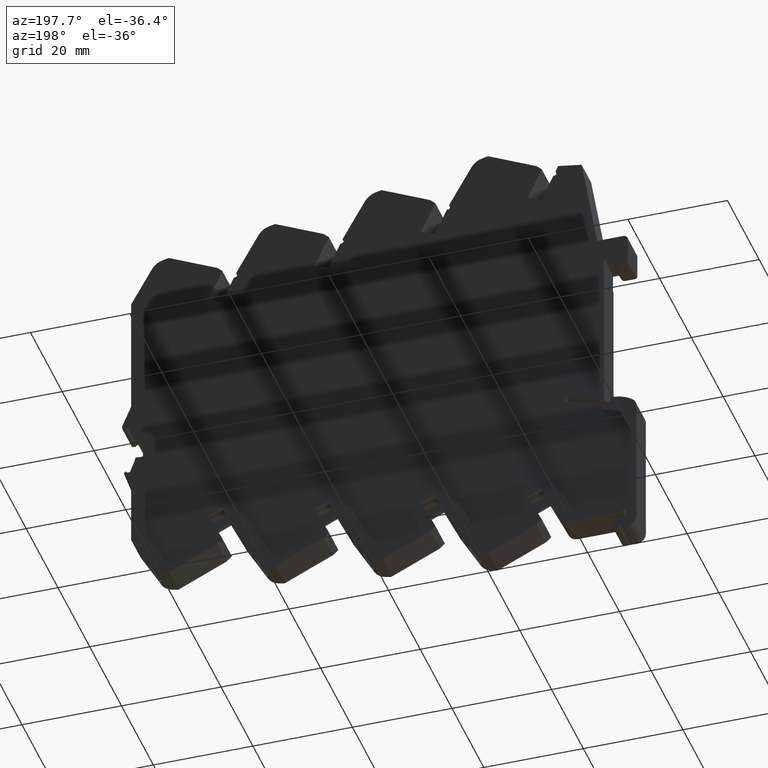
[diagram: clean part render]
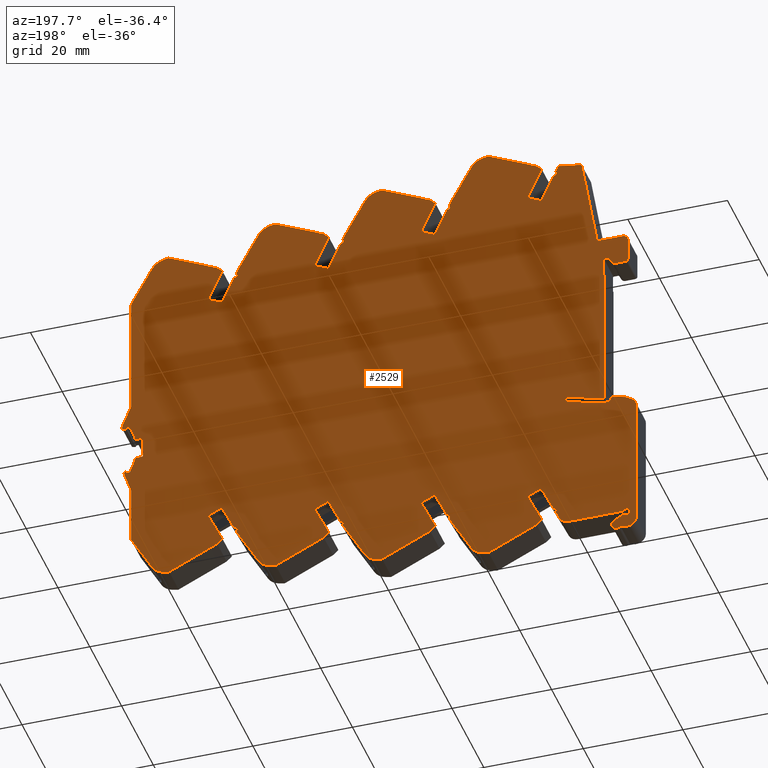
[diagram: same view with one face highlighted and labeled with its STEP entity id]
A machine part, auxiliary view. The second image highlights one B-rep face of the part: STEP entity #2529.
In plain terms, the highlighted planar face has unit normal (0, 1, 0).
Its self-contained STEP definition (entity closure, byte-faithful):
#23 = DIRECTION ( 'NONE',  ( 1.000000000000000000, 0.000000000000000000, 0.000000000000000000 ) ) ;
#24 = DIRECTION ( 'NONE',  ( 0.000000000000000000, 1.000000000000000000, 0.000000000000000000 ) ) ;
#30 = EDGE_CURVE ( 'NONE', #4700, #5762, #3654, .T. ) ;
#33 = CARTESIAN_POINT ( 'NONE',  ( 3.000000000000000000, 46.24974242191490248, -17.63143367426578934 ) ) ;
#41 = VERTEX_POINT ( 'NONE', #3744 ) ;
#49 = CARTESIAN_POINT ( 'NONE',  ( 3.000000000000000000, -0.08541600000000219850, 52.55000000000000426 ) ) ;
#53 = DIRECTION ( 'NONE',  ( 0.000000000000000000, 0.4226182389767550451, 0.9063077976516512591 ) ) ;
#63 = LINE ( 'NONE', #5994, #4267 ) ;
#66 = AXIS2_PLACEMENT_3D ( 'NONE', #6480, #5822, #1073 ) ;
#74 = LINE ( 'NONE', #7367, #4528 ) ;
#83 = DIRECTION ( 'NONE',  ( 0.000000000000000000, 1.000000000000000000, 0.000000000000000000 ) ) ;
#92 = DIRECTION ( 'NONE',  ( 0.000000000000000000, -1.000000000000000000, 0.000000000000000000 ) ) ;
#94 = LINE ( 'NONE', #2205, #5680 ) ;
#98 = EDGE_CURVE ( 'NONE', #8410, #3798, #6416, .T. ) ;
#110 = CARTESIAN_POINT ( 'NONE',  ( 3.000000000000000000, 18.47499999999999787, -45.22258599999998552 ) ) ;
#120 = ORIENTED_EDGE ( 'NONE', *, *, #1795, .T. ) ;
#134 = DIRECTION ( 'NONE',  ( 0.000000000000000000, 1.000000000000000000, 0.000000000000000000 ) ) ;
#142 = CARTESIAN_POINT ( 'NONE',  ( 3.000000000000000000, -36.30747228031760443, 43.07241960114301804 ) ) ;
#151 = EDGE_CURVE ( 'NONE', #6503, #3981, #2947, .T. ) ;
#194 = CARTESIAN_POINT ( 'NONE',  ( 3.000000000000000000, -40.32500000000000284, -37.11722635186902153 ) ) ;
#195 = CARTESIAN_POINT ( 'NONE',  ( 3.000000000000000000, -44.29974242191489964, -17.63143367426578934 ) ) ;
#199 = VECTOR ( 'NONE', #53, 1000.000000000000227 ) ;
#216 = ORIENTED_EDGE ( 'NONE', *, *, #924, .T. ) ;
#220 = DIRECTION ( 'NONE',  ( 0.000000000000000000, 1.000000000000000000, 0.000000000000000000 ) ) ;
#227 = EDGE_CURVE ( 'NONE', #4911, #3389, #5880, .T. ) ;
#272 = EDGE_CURVE ( 'NONE', #6134, #1087, #4157, .T. ) ;
#280 = DIRECTION ( 'NONE',  ( 0.000000000000000000, 1.000000000000000000, 0.000000000000000000 ) ) ;
#285 = LINE ( 'NONE', #2229, #1004 ) ;
#295 = ORIENTED_EDGE ( 'NONE', *, *, #2162, .T. ) ;
#303 = EDGE_CURVE ( 'NONE', #3518, #7428, #4051, .T. ) ;
#306 = AXIS2_PLACEMENT_3D ( 'NONE', #2846, #2892, #8156 ) ;
#307 = VECTOR ( 'NONE', #7462, 1000.000000000000000 ) ;
#319 = ORIENTED_EDGE ( 'NONE', *, *, #7263, .T. ) ;
#335 = DIRECTION ( 'NONE',  ( 0.000000000000000000, 1.000000000000000000, 0.000000000000000000 ) ) ;
#341 = VECTOR ( 'NONE', #2929, 1000.000000000000114 ) ;
#350 = ORIENTED_EDGE ( 'NONE', *, *, #4163, .T. ) ;
#355 = EDGE_CURVE ( 'NONE', #8613, #2638, #8164, .T. ) ;
#362 = ORIENTED_EDGE ( 'NONE', *, *, #5107, .T. ) ;
#365 = LINE ( 'NONE', #3540, #3821 ) ;
#375 = ORIENTED_EDGE ( 'NONE', *, *, #3512, .T. ) ;
#378 = AXIS2_PLACEMENT_3D ( 'NONE', #2512, #5805, #3659 ) ;
#379 = CARTESIAN_POINT ( 'NONE',  ( 3.000000000000000000, 4.574627000000000443, 50.75000000000000711 ) ) ;
#383 = CARTESIAN_POINT ( 'NONE',  ( 3.000000000000000000, -14.92500000000000071, -45.84999999999998721 ) ) ;
#395 = ORIENTED_EDGE ( 'NONE', *, *, #3591, .T. ) ;
#397 = LINE ( 'NONE', #4456, #4181 ) ;
#400 = CARTESIAN_POINT ( 'NONE',  ( 3.000000000000000000, -43.18036732630590535, -48.24594927549720325 ) ) ;
#416 = LINE ( 'NONE', #4473, #8168 ) ;
#420 = CARTESIAN_POINT ( 'NONE',  ( 3.000000000000000000, 33.99153209865420422, 8.672509953996806686 ) ) ;
#422 = AXIS2_PLACEMENT_3D ( 'NONE', #4691, #640, #6573 ) ;
#426 = CARTESIAN_POINT ( 'NONE',  ( 3.000000000000000000, 17.50238246662039998, -45.80353878241179899 ) ) ;
#429 = CARTESIAN_POINT ( 'NONE',  ( 3.000000000000000000, 41.55567196690120113, 21.94211615099361268 ) ) ;
#438 = ORIENTED_EDGE ( 'NONE', *, *, #4827, .T. ) ;
#439 = CARTESIAN_POINT ( 'NONE',  ( 3.000000000000000000, -35.09255900000000139, 12.06949300000000669 ) ) ;
#444 = VECTOR ( 'NONE', #5278, 1000.000000000000000 ) ;
#453 = LINE ( 'NONE', #3846, #5280 ) ;
#459 = CARTESIAN_POINT ( 'NONE',  ( 3.000000000000000000, -31.82255900000000182, 33.45449300000000648 ) ) ;
#465 = LINE ( 'NONE', #5912, #7094 ) ;
#467 = CARTESIAN_POINT ( 'NONE',  ( 3.000000000000000000, -32.84521471387499503, 43.60500013366809924 ) ) ;
#473 = CARTESIAN_POINT ( 'NONE',  ( 3.000000000000000000, 28.95057999999999865, 50.74349200000001048 ) ) ;
#485 = CARTESIAN_POINT ( 'NONE',  ( 3.000000000000000000, 0.4716932824673149560, 52.50952687886500314 ) ) ;
#489 = VERTEX_POINT ( 'NONE', #1666 ) ;
#501 = VERTEX_POINT ( 'NONE', #4217 ) ;
#502 = ORIENTED_EDGE ( 'NONE', *, *, #1977, .T. ) ;
#512 = CIRCLE ( 'NONE', #2344, 0.2000000000000000111 ) ;
#530 = CARTESIAN_POINT ( 'NONE',  ( 3.000000000000000000, 0.2746270000000000100, 52.55000000000000426 ) ) ;
#538 = LINE ( 'NONE', #3224, #6545 ) ;
#566 = CARTESIAN_POINT ( 'NONE',  ( 3.000000000000000000, 14.72499999999999964, -44.14999999999998437 ) ) ;
#580 = CARTESIAN_POINT ( 'NONE',  ( 3.000000000000000000, -45.92751672738229729, -19.83268575635068842 ) ) ;
#587 = VERTEX_POINT ( 'NONE', #1921 ) ;
#589 = CARTESIAN_POINT ( 'NONE',  ( 3.000000000000000000, 37.04256000000000171, 12.06949300000000669 ) ) ;
#593 = CIRCLE ( 'NONE', #5226, 0.1999999999999987899 ) ;
#596 = DIRECTION ( 'NONE',  ( 0.000000000000000000, 1.000000000000000000, 0.000000000000000000 ) ) ;
#597 = VERTEX_POINT ( 'NONE', #2451 ) ;
#601 = EDGE_CURVE ( 'NONE', #3070, #1785, #7232, .T. ) ;
#604 = CARTESIAN_POINT ( 'NONE',  ( 3.000000000000000000, 18.27500000000089742, -45.22258660470469493 ) ) ;
#613 = LINE ( 'NONE', #4010, #5826 ) ;
#615 = AXIS2_PLACEMENT_3D ( 'NONE', #467, #7810, #596 ) ;
#623 = EDGE_CURVE ( 'NONE', #7217, #5981, #465, .T. ) ;
#636 = CARTESIAN_POINT ( 'NONE',  ( 3.000000000000000000, -37.37593000000000387, -10.36499999999999311 ) ) ;
#640 = DIRECTION ( 'NONE',  ( 1.000000000000000000, 0.000000000000000000, 0.000000000000000000 ) ) ;
#642 = DIRECTION ( 'NONE',  ( 1.000000000000000000, 0.000000000000000000, 0.000000000000000000 ) ) ;
#656 = VERTEX_POINT ( 'NONE', #1254 ) ;
#663 = AXIS2_PLACEMENT_3D ( 'NONE', #194, #6218, #2883 ) ;
#665 = VERTEX_POINT ( 'NONE', #7368 ) ;
#704 = FACE_OUTER_BOUND ( 'NONE', #1926, .T. ) ;
#706 = DIRECTION ( 'NONE',  ( 0.000000000000000000, 1.000000000000000000, 0.000000000000000000 ) ) ;
#708 = EDGE_CURVE ( 'NONE', #7972, #501, #7386, .T. ) ;
#712 = CARTESIAN_POINT ( 'NONE',  ( 3.000000000000000000, 37.04256000000000171, 12.06949300000000669 ) ) ;
#717 = DIRECTION ( 'NONE',  ( 1.000000000000000000, 0.000000000000000000, 0.000000000000000000 ) ) ;
#719 = VECTOR ( 'NONE', #1905, 1000.000000000000227 ) ;
#726 = CARTESIAN_POINT ( 'NONE',  ( 3.000000000000000000, 48.09567196690120028, -20.82788384900638690 ) ) ;
#730 = VECTOR ( 'NONE', #6013, 1000.000000000000114 ) ;
#731 = VECTOR ( 'NONE', #3428, 1000.000000000000114 ) ;
#734 = LINE ( 'NONE', #33, #6481 ) ;
#736 = CARTESIAN_POINT ( 'NONE',  ( 3.000000000000000000, 17.42500000000000071, -48.54999999999999005 ) ) ;
#758 = LINE ( 'NONE', #4022, #719 ) ;
#772 = CARTESIAN_POINT ( 'NONE',  ( 3.000000000000000000, -32.52499999999999858, 8.545000000000010587 ) ) ;
#792 = VERTEX_POINT ( 'NONE', #4830 ) ;
#798 = VECTOR ( 'NONE', #3093, 1000.000000000000114 ) ;
#805 = VECTOR ( 'NONE', #6769, 1000.000000000000114 ) ;
#816 = EDGE_CURVE ( 'NONE', #2358, #4101, #7936, .T. ) ;
#822 = LINE ( 'NONE', #4136, #5445 ) ;
#827 = VERTEX_POINT ( 'NONE', #3590 ) ;
#832 = VERTEX_POINT ( 'NONE', #5041 ) ;
#840 = CARTESIAN_POINT ( 'NONE',  ( 3.000000000000000000, -15.76027599999999929, -44.24999999999999289 ) ) ;
#855 = CARTESIAN_POINT ( 'NONE',  ( 3.000000000000000000, -44.12500000000000000, -50.74999999999999289 ) ) ;
#863 = LINE ( 'NONE', #6728, #199 ) ;
#864 = VERTEX_POINT ( 'NONE', #947 ) ;
#871 = LINE ( 'NONE', #7433, #4854 ) ;
#885 = AXIS2_PLACEMENT_3D ( 'NONE', #2919, #4283, #8264 ) ;
#887 = LINE ( 'NONE', #840, #1599 ) ;
#905 = CIRCLE ( 'NONE', #7212, 0.2999999999999825584 ) ;
#915 = VERTEX_POINT ( 'NONE', #1695 ) ;
#924 = EDGE_CURVE ( 'NONE', #5579, #5297, #7050, .T. ) ;
#931 = DIRECTION ( 'NONE',  ( 0.000000000000000000, 0.4226182389767559333, -0.9063077976516507039 ) ) ;
#932 = DIRECTION ( 'NONE',  ( 0.000000000000000000, -0.9063077647842205931, -0.4226183094611852264 ) ) ;
#940 = CARTESIAN_POINT ( 'NONE',  ( 3.000000000000000000, -36.20344564292460632, -13.12839583349259165 ) ) ;
#947 = CARTESIAN_POINT ( 'NONE',  ( 3.000000000000000000, -45.25846732154369789, -45.85048608615743859 ) ) ;
#959 = EDGE_CURVE ( 'NONE', #8491, #4911, #453, .T. ) ;
#960 = ORIENTED_EDGE ( 'NONE', *, *, #355, .T. ) ;
#961 = VERTEX_POINT ( 'NONE', #7839 ) ;
#978 = ORIENTED_EDGE ( 'NONE', *, *, #227, .T. ) ;
#986 = DIRECTION ( 'NONE',  ( 0.000000000000000000, -0.9063077888657267156, 0.4226182578182318683 ) ) ;
#992 = DIRECTION ( 'NONE',  ( 0.000000000000000000, -1.000000000000000000, 0.000000000000000000 ) ) ;
#1004 = VECTOR ( 'NONE', #8242, 1000.000000000000114 ) ;
#1012 = VERTEX_POINT ( 'NONE', #4547 ) ;
#1022 = ORIENTED_EDGE ( 'NONE', *, *, #7869, .T. ) ;
#1054 = EDGE_CURVE ( 'NONE', #7837, #8397, #538, .T. ) ;
#1057 = VECTOR ( 'NONE', #7898, 1000.000000000000114 ) ;
#1058 = CARTESIAN_POINT ( 'NONE',  ( 3.000000000000000000, -42.87567188478399771, 0.5571165256015100375 ) ) ;
#1068 = VERTEX_POINT ( 'NONE', #5820 ) ;
#1073 = DIRECTION ( 'NONE',  ( 0.000000000000000000, 1.000000000000000000, 0.000000000000000000 ) ) ;
#1087 = VERTEX_POINT ( 'NONE', #580 ) ;
#1094 = ORIENTED_EDGE ( 'NONE', *, *, #1233, .T. ) ;
#1109 = DIRECTION ( 'NONE',  ( 1.000000000000000000, 0.000000000000000000, 0.000000000000000000 ) ) ;
#1113 = ORIENTED_EDGE ( 'NONE', *, *, #2330, .T. ) ;
#1117 = CARTESIAN_POINT ( 'NONE',  ( 3.000000000000000000, 38.15344564292470153, -13.12839583349259165 ) ) ;
#1124 = CARTESIAN_POINT ( 'NONE',  ( 3.000000000000000000, -45.92751672738229729, -19.83268575635068842 ) ) ;
#1125 = CARTESIAN_POINT ( 'NONE',  ( 3.000000000000000000, 33.99153209865420422, 8.672509953996806686 ) ) ;
#1136 = CARTESIAN_POINT ( 'NONE',  ( 3.000000000000000000, 44.82567196690120426, 0.5571161509936097822 ) ) ;
#1152 = CARTESIAN_POINT ( 'NONE',  ( 3.000000000000000000, 36.43974242191490021, 46.52356632573421535 ) ) ;
#1157 = CIRCLE ( 'NONE', #3701, 1.000000000000000888 ) ;
#1169 = EDGE_CURVE ( 'NONE', #5415, #1774, #63, .T. ) ;
#1171 = VERTEX_POINT ( 'NONE', #8661 ) ;
#1172 = LINE ( 'NONE', #1124, #6200 ) ;
#1180 = VERTEX_POINT ( 'NONE', #5336 ) ;
#1201 = DIRECTION ( 'NONE',  ( 0.000000000000000000, 0.9063077943610161613, 0.4226182460335450308 ) ) ;
#1224 = VECTOR ( 'NONE', #4404, 1000.000000000000000 ) ;
#1231 = CARTESIAN_POINT ( 'NONE',  ( 3.000000000000000000, -29.66344564292460362, 29.64160416650739904 ) ) ;
#1233 = EDGE_CURVE ( 'NONE', #6855, #4313, #887, .T. ) ;
#1239 = CARTESIAN_POINT ( 'NONE',  ( 3.000000000000000000, -38.36255899999999741, -9.315506999999993099 ) ) ;
#1241 = EDGE_CURVE ( 'NONE', #864, #656, #4897, .T. ) ;
#1251 = EDGE_CURVE ( 'NONE', #5110, #6122, #6254, .T. ) ;
#1254 = CARTESIAN_POINT ( 'NONE',  ( 3.000000000000000000, -45.38381899589860069, -45.88407399890103022 ) ) ;
#1269 = EDGE_CURVE ( 'NONE', #1180, #6429, #7622, .T. ) ;
#1275 = DIRECTION ( 'NONE',  ( 0.000000000000000000, -0.1822355976929130039, 0.9832548941823309185 ) ) ;
#1278 = EDGE_CURVE ( 'NONE', #2688, #1068, #8465, .T. ) ;
#1284 = LINE ( 'NONE', #1239, #1295 ) ;
#1289 = VECTOR ( 'NONE', #6801, 999.9999999999998863 ) ;
#1292 = LINE ( 'NONE', #7357, #4281 ) ;
#1295 = VECTOR ( 'NONE', #7216, 1000.000000000000114 ) ;
#1304 = CARTESIAN_POINT ( 'NONE',  ( 3.000000000000000000, 41.33521585479779503, 0.8349994907912092756 ) ) ;
#1312 = AXIS2_PLACEMENT_3D ( 'NONE', #8105, #7489, #6737 ) ;
#1313 = ORIENTED_EDGE ( 'NONE', *, *, #6124, .T. ) ;
#1314 = CARTESIAN_POINT ( 'NONE',  ( 3.000000000000000000, -8.225372999999999379, 49.97000000000000597 ) ) ;
#1323 = ORIENTED_EDGE ( 'NONE', *, *, #623, .T. ) ;
#1330 = CARTESIAN_POINT ( 'NONE',  ( 3.000000000000000000, -2.825372999999999912, 49.97000000000000597 ) ) ;
#1333 = CIRCLE ( 'NONE', #3155, 0.3999999999999351297 ) ;
#1356 = CARTESIAN_POINT ( 'NONE',  ( 3.000000000000000000, -14.92500000000000071, -45.64999999999999147 ) ) ;
#1360 = CARTESIAN_POINT ( 'NONE',  ( 3.000000000000000000, -45.87559870394819939, -47.51075834132559805 ) ) ;
#1362 = DIRECTION ( 'NONE',  ( 1.000000000000000000, 0.000000000000000000, 0.000000000000000000 ) ) ;
#1363 = ORIENTED_EDGE ( 'NONE', *, *, #5369, .T. ) ;
#1364 = CARTESIAN_POINT ( 'NONE',  ( 3.000000000000000000, -39.38521471387490180, 0.8350001336681136532 ) ) ;
#1377 = VERTEX_POINT ( 'NONE', #530 ) ;
#1378 = CARTESIAN_POINT ( 'NONE',  ( 3.000000000000000000, 34.88344564292459893, 8.256604166507406362 ) ) ;
#1386 = CARTESIAN_POINT ( 'NONE',  ( 3.000000000000000000, -8.225372999999999379, 49.97000000000000597 ) ) ;
#1397 = LINE ( 'NONE', #3461, #8175 ) ;
#1398 = DIRECTION ( 'NONE',  ( 0.000000000000000000, 0.000000000000000000, -1.000000000000000000 ) ) ;
#1405 = LINE ( 'NONE', #855, #7879 ) ;
#1409 = EDGE_CURVE ( 'NONE', #5117, #8491, #3876, .T. ) ;
#1410 = CARTESIAN_POINT ( 'NONE',  ( 3.000000000000000000, -42.65521471387489783, -20.54999986633199072 ) ) ;
#1426 = DIRECTION ( 'NONE',  ( 0.000000000000000000, -0.2141227343362720192, 0.9768067642273768891 ) ) ;
#1432 = VERTEX_POINT ( 'NONE', #485 ) ;
#1438 = EDGE_CURVE ( 'NONE', #3287, #7926, #1876, .T. ) ;
#1440 = DIRECTION ( 'NONE',  ( 1.000000000000000000, 0.000000000000000000, 0.000000000000000000 ) ) ;
#1454 = CIRCLE ( 'NONE', #1312, 3.349999999997368860 ) ;
#1471 = CARTESIAN_POINT ( 'NONE',  ( 3.000000000000000000, 44.60751836926140612, 1.552311315466008201 ) ) ;
#1474 = ORIENTED_EDGE ( 'NONE', *, *, #7771, .T. ) ;
#1483 = ORIENTED_EDGE ( 'NONE', *, *, #4285, .T. ) ;
#1503 = CARTESIAN_POINT ( 'NONE',  ( 3.000000000000000000, -8.086747000000000796, 49.97000000000000597 ) ) ;
#1509 = CARTESIAN_POINT ( 'NONE',  ( 3.000000000000000000, -43.06618100410140215, -45.26306500109895126 ) ) ;
#1520 = CARTESIAN_POINT ( 'NONE',  ( 3.000000000000000000, -29.66344564292460362, 29.64160416650739904 ) ) ;
#1521 = VERTEX_POINT ( 'NONE', #3393 ) ;
#1534 = CARTESIAN_POINT ( 'NONE',  ( 3.000000000000000000, 32.22057999999999822, 29.35849200000000536 ) ) ;
#1536 = DIRECTION ( 'NONE',  ( 1.000000000000000000, 0.000000000000000000, 0.000000000000000000 ) ) ;
#1537 = EDGE_CURVE ( 'NONE', #4101, #2087, #1898, .T. ) ;
#1540 = CARTESIAN_POINT ( 'NONE',  ( 3.000000000000000000, -10.97971904777410046, 51.65000000000000568 ) ) ;
#1552 = EDGE_CURVE ( 'NONE', #4591, #3723, #863, .T. ) ;
#1557 = CARTESIAN_POINT ( 'NONE',  ( 3.000000000000000000, -15.33446299999999951, -45.64999999999999147 ) ) ;
#1572 = CARTESIAN_POINT ( 'NONE',  ( 3.000000000000000000, -11.13733343649129992, 52.12450785501330586 ) ) ;
#1575 = VECTOR ( 'NONE', #5966, 1000.000000000000000 ) ;
#1581 = ORIENTED_EDGE ( 'NONE', *, *, #7981, .T. ) ;
#1582 = VECTOR ( 'NONE', #3065, 1000.000000000000227 ) ;
#1591 = AXIS2_PLACEMENT_3D ( 'NONE', #6004, #8113, #2055 ) ;
#1599 = VECTOR ( 'NONE', #2875, 999.9999999999998863 ) ;
#1600 = LINE ( 'NONE', #2296, #4969 ) ;
#1601 = CARTESIAN_POINT ( 'NONE',  ( 3.000000000000000000, 22.07499999999999929, -48.04999999999999005 ) ) ;
#1603 = EDGE_CURVE ( 'NONE', #8430, #4209, #1750, .T. ) ;
#1606 = VERTEX_POINT ( 'NONE', #4309 ) ;
#1622 = LINE ( 'NONE', #1572, #2780 ) ;
#1629 = CARTESIAN_POINT ( 'NONE',  ( 3.000000000000000000, 38.76058000000000447, -13.41150799999999244 ) ) ;
#1649 = CARTESIAN_POINT ( 'NONE',  ( 3.000000000000000000, -39.57747228031760045, 21.68741960114301648 ) ) ;
#1650 = ORIENTED_EDGE ( 'NONE', *, *, #8490, .T. ) ;
#1651 = DIRECTION ( 'NONE',  ( 0.000000000000000000, 0.6849492895505407963, 0.7285907429718068151 ) ) ;
#1666 = CARTESIAN_POINT ( 'NONE',  ( 3.000000000000000000, 38.06751836926139987, 44.32231131546600977 ) ) ;
#1670 = CARTESIAN_POINT ( 'NONE',  ( 3.000000000000000000, -29.99622999999999706, -10.23392399999999114 ) ) ;
#1682 = CARTESIAN_POINT ( 'NONE',  ( 3.000000000000000000, -0.3251265267637930001, 51.64358536082911399 ) ) ;
#1684 = EDGE_CURVE ( 'NONE', #7463, #4223, #8477, .T. ) ;
#1693 = DIRECTION ( 'NONE',  ( 0.000000000000000000, 0.4226182966199911184, -0.9063077707721682863 ) ) ;
#1695 = CARTESIAN_POINT ( 'NONE',  ( 3.000000000000000000, -42.84747228031760358, 0.3024196011430085873 ) ) ;
#1700 = EDGE_CURVE ( 'NONE', #7469, #1432, #5614, .T. ) ;
#1708 = CARTESIAN_POINT ( 'NONE',  ( 3.000000000000000000, -39.06850000000000023, -34.21656699999999063 ) ) ;
#1709 = ORIENTED_EDGE ( 'NONE', *, *, #708, .T. ) ;
#1717 = CARTESIAN_POINT ( 'NONE',  ( 3.000000000000000000, -32.93344564292469556, 8.256604166507406362 ) ) ;
#1731 = CIRCLE ( 'NONE', #6221, 0.2000000000000196065 ) ;
#1735 = CARTESIAN_POINT ( 'NONE',  ( 3.000000000000000000, -36.33567188478399856, 43.32711652560149673 ) ) ;
#1736 = EDGE_CURVE ( 'NONE', #6921, #792, #7358, .T. ) ;
#1748 = CARTESIAN_POINT ( 'NONE',  ( 3.000000000000000000, -2.963999000000000272, 49.97000000000000597 ) ) ;
#1750 = CIRCLE ( 'NONE', #5950, 0.5000000000000004441 ) ;
#1769 = CARTESIAN_POINT ( 'NONE',  ( 3.000000000000000000, 23.07499999999999929, -42.88857899999998580 ) ) ;
#1770 = CARTESIAN_POINT ( 'NONE',  ( 3.000000000000000000, 31.61344564292459935, 29.64160416650739904 ) ) ;
#1774 = VERTEX_POINT ( 'NONE', #3646 ) ;
#1784 = AXIS2_PLACEMENT_3D ( 'NONE', #3922, #4066, #3881 ) ;
#1785 = VERTEX_POINT ( 'NONE', #3108 ) ;
#1790 = DIRECTION ( 'NONE',  ( 1.000000000000000000, 0.000000000000000000, 0.000000000000000000 ) ) ;
#1791 = EDGE_CURVE ( 'NONE', #2638, #5877, #6933, .T. ) ;
#1795 = EDGE_CURVE ( 'NONE', #5423, #792, #3941, .T. ) ;
#1796 = ORIENTED_EDGE ( 'NONE', *, *, #4225, .T. ) ;
#1802 = CARTESIAN_POINT ( 'NONE',  ( 3.000000000000000000, -42.65751672738230127, 1.552314243649308256 ) ) ;
#1805 = LINE ( 'NONE', #1136, #4741 ) ;
#1808 = DIRECTION ( 'NONE',  ( 0.000000000000000000, -0.9063077888657260495, -0.4226182578182329785 ) ) ;
#1817 = CARTESIAN_POINT ( 'NONE',  ( 3.000000000000000000, -0.2753726401734959972, 51.83729790758110312 ) ) ;
#1835 = EDGE_CURVE ( 'NONE', #6259, #6861, #4550, .T. ) ;
#1836 = VERTEX_POINT ( 'NONE', #4515 ) ;
#1842 = VECTOR ( 'NONE', #1426, 1000.000000000000114 ) ;
#1847 = DIRECTION ( 'NONE',  ( 0.000000000000000000, 1.000000000000000000, 0.000000000000000000 ) ) ;
#1853 = VECTOR ( 'NONE', #4290, 1000.000000000000000 ) ;
#1863 = ORIENTED_EDGE ( 'NONE', *, *, #6599, .T. ) ;
#1868 = VECTOR ( 'NONE', #1398, 1000.000000000000000 ) ;
#1872 = DIRECTION ( 'NONE',  ( 1.000000000000000000, 0.000000000000000000, 0.000000000000000000 ) ) ;
#1876 = CIRCLE ( 'NONE', #3707, 0.1999999999999987899 ) ;
#1877 = DIRECTION ( 'NONE',  ( 0.000000000000000000, 1.000000000000000000, 0.000000000000000000 ) ) ;
#1884 = LINE ( 'NONE', #4524, #2493 ) ;
#1895 = CIRCLE ( 'NONE', #3159, 1.000000000000000888 ) ;
#1898 = LINE ( 'NONE', #4618, #4275 ) ;
#1899 = ORIENTED_EDGE ( 'NONE', *, *, #6730, .T. ) ;
#1905 = DIRECTION ( 'NONE',  ( 0.000000000000000000, -0.9063077647842200379, 0.4226183094611860591 ) ) ;
#1921 = CARTESIAN_POINT ( 'NONE',  ( 3.000000000000000000, 37.26153209865420024, -12.71249004600318777 ) ) ;
#1926 = EDGE_LOOP ( 'NONE', ( #2879, #6578, #3277, #4620, #3191, #4552, #319, #1709, #7131, #7859, #2736, #7407, #8654, #1094, #2488, #3163, #2761, #4015, #1313, #7980, #8096, #1958, #6117, #7241, #6811, #6061, #2063, #5939, #3880, #7927, #2118, #4483, #6154, #3445, #2634, #438, #4434, #8130, #6538, #375, #4086, #8077, #1863, #1581, #8213, #8399, #4701, #2776, #8608, #8154, #7019, #7295, #6715, #6560, #2006, #2136, #2257, #8011, #4585, #6292, #1474, #8525, #3548, #6852, #7871, #2290, #1796, #5789, #6508, #8258, #7326, #7624, #8191, #6125, #3912, #8388, #4798, #216, #8344, #7732, #6819, #1483, #5504, #4664, #3429, #3676, #5661, #8520, #502, #8000, #6800, #8345, #3178, #2432, #7158, #6690, #2670, #4785, #1363, #3882, #4211, #2905, #6494, #3413, #4762, #7008, #6019, #5433, #5341, #2167, #960, #4335, #6589, #2300, #8383, #2356, #6216, #2794, #120, #2940, #295, #1323, #6656, #8483, #8690, #4289, #5418, #3010, #8166, #362, #5873, #5627, #5788, #2212, #7180, #4501, #350, #1650, #7802, #3539, #6607, #3737, #2997, #6419, #5605, #1022, #1113, #8559, #2589, #2191, #978, #7683, #4423, #3180, #395, #2433, #1899, #3030, #2016 ) ) ;
#1934 = EDGE_CURVE ( 'NONE', #7770, #7234, #4695, .T. ) ;
#1938 = CARTESIAN_POINT ( 'NONE',  ( 3.000000000000000000, 47.87751836926140214, -19.83268868453399136 ) ) ;
#1943 = VERTEX_POINT ( 'NONE', #4783 ) ;
#1950 = VERTEX_POINT ( 'NONE', #2800 ) ;
#1958 = ORIENTED_EDGE ( 'NONE', *, *, #6007, .F. ) ;
#1965 = CARTESIAN_POINT ( 'NONE',  ( 3.000000000000000000, -23.45623000000000147, 32.53607600000000133 ) ) ;
#1966 = EDGE_CURVE ( 'NONE', #4223, #6244, #6797, .T. ) ;
#1972 = CARTESIAN_POINT ( 'NONE',  ( 3.000000000000000000, 44.79747229475459847, 0.3024196321034094970 ) ) ;
#1974 = CIRCLE ( 'NONE', #7996, 6.700000000000001066 ) ;
#1977 = EDGE_CURVE ( 'NONE', #7989, #5078, #3502, .T. ) ;
#1991 = VECTOR ( 'NONE', #2691, 1000.000000000000000 ) ;
#1996 = CARTESIAN_POINT ( 'NONE',  ( 3.000000000000000000, 25.40622999999999720, 32.53607600000000133 ) ) ;
#2006 = ORIENTED_EDGE ( 'NONE', *, *, #1537, .T. ) ;
#2010 = DIRECTION ( 'NONE',  ( 0.000000000000000000, 1.000000000000000000, 0.000000000000000000 ) ) ;
#2016 = ORIENTED_EDGE ( 'NONE', *, *, #2698, .T. ) ;
#2027 = EDGE_CURVE ( 'NONE', #3112, #6244, #8334, .T. ) ;
#2033 = CARTESIAN_POINT ( 'NONE',  ( 3.000000000000000000, -45.75494925318410111, -20.91353290612808991 ) ) ;
#2045 = DIRECTION ( 'NONE',  ( 1.000000000000000000, 0.000000000000000000, 0.000000000000000000 ) ) ;
#2048 = CARTESIAN_POINT ( 'NONE',  ( 3.000000000000000000, -46.14567188478400084, -20.82788347439849019 ) ) ;
#2055 = DIRECTION ( 'NONE',  ( 0.000000000000000000, 1.000000000000000000, 0.000000000000000000 ) ) ;
#2058 = CARTESIAN_POINT ( 'NONE',  ( 3.000000000000000000, 23.07499999999999929, -42.88857899999998580 ) ) ;
#2060 = DIRECTION ( 'NONE',  ( 1.000000000000000000, 0.000000000000000000, 0.000000000000000000 ) ) ;
#2063 = ORIENTED_EDGE ( 'NONE', *, *, #6920, .T. ) ;
#2064 = LINE ( 'NONE', #5309, #7321 ) ;
#2065 = EDGE_CURVE ( 'NONE', #1606, #5415, #8274, .T. ) ;
#2068 = VERTEX_POINT ( 'NONE', #3721 ) ;
#2075 = CIRCLE ( 'NONE', #1784, 0.4999999999992150723 ) ;
#2079 = CARTESIAN_POINT ( 'NONE',  ( 3.000000000000000000, 0.2746270000000000100, 52.55000000000000426 ) ) ;
#2087 = VERTEX_POINT ( 'NONE', #6350 ) ;
#2099 = LINE ( 'NONE', #3459, #3532 ) ;
#2101 = DIRECTION ( 'NONE',  ( 0.000000000000000000, 0.4226182192191442755, 0.9063078068647755225 ) ) ;
#2112 = DIRECTION ( 'NONE',  ( 0.000000000000000000, 0.4226182389767559333, -0.9063077976516507039 ) ) ;
#2113 = CARTESIAN_POINT ( 'NONE',  ( 3.000000000000000000, -10.88030700000000017, 52.15000000000000568 ) ) ;
#2117 = EDGE_CURVE ( 'NONE', #3514, #1943, #905, .T. ) ;
#2118 = ORIENTED_EDGE ( 'NONE', *, *, #6964, .T. ) ;
#2119 = DIRECTION ( 'NONE',  ( 0.000000000000000000, -0.9063073489103360414, -0.4226192013043399975 ) ) ;
#2126 = EDGE_CURVE ( 'NONE', #5191, #8387, #6268, .T. ) ;
#2134 = VECTOR ( 'NONE', #2293, 999.9999999999998863 ) ;
#2136 = ORIENTED_EDGE ( 'NONE', *, *, #4052, .T. ) ;
#2147 = VECTOR ( 'NONE', #3133, 1000.000000000000114 ) ;
#2154 = VECTOR ( 'NONE', #24, 1000.000000000000000 ) ;
#2156 = VECTOR ( 'NONE', #4595, 1000.000000000000227 ) ;
#2158 = VERTEX_POINT ( 'NONE', #4248 ) ;
#2162 = EDGE_CURVE ( 'NONE', #6921, #7217, #7621, .T. ) ;
#2167 = ORIENTED_EDGE ( 'NONE', *, *, #2707, .T. ) ;
#2182 = LINE ( 'NONE', #7496, #2268 ) ;
#2191 = ORIENTED_EDGE ( 'NONE', *, *, #959, .T. ) ;
#2194 = LINE ( 'NONE', #4214, #307 ) ;
#2201 = VERTEX_POINT ( 'NONE', #2441 ) ;
#2205 = CARTESIAN_POINT ( 'NONE',  ( 3.000000000000000000, -26.98662500000000009, 50.75000000000000711 ) ) ;
#2212 = ORIENTED_EDGE ( 'NONE', *, *, #2969, .T. ) ;
#2222 = EDGE_CURVE ( 'NONE', #489, #8380, #8607, .T. ) ;
#2226 = DIRECTION ( 'NONE',  ( 1.000000000000000000, 0.000000000000000000, 0.000000000000000000 ) ) ;
#2229 = CARTESIAN_POINT ( 'NONE',  ( 3.000000000000000000, 39.70974242191489623, 25.13856632573421024 ) ) ;
#2239 = VERTEX_POINT ( 'NONE', #6568 ) ;
#2246 = VERTEX_POINT ( 'NONE', #7305 ) ;
#2257 = ORIENTED_EDGE ( 'NONE', *, *, #6027, .F. ) ;
#2259 = CARTESIAN_POINT ( 'NONE',  ( 3.000000000000000000, -7.725372999999999379, 48.45000000000001705 ) ) ;
#2267 = EDGE_CURVE ( 'NONE', #827, #2374, #1292, .T. ) ;
#2268 = VECTOR ( 'NONE', #4779, 1000.000000000000000 ) ;
#2280 = VERTEX_POINT ( 'NONE', #2048 ) ;
#2282 = VECTOR ( 'NONE', #1693, 1000.000000000000114 ) ;
#2283 = VECTOR ( 'NONE', #2521, 1000.000000000000114 ) ;
#2286 = DIRECTION ( 'NONE',  ( 1.000000000000000000, 0.000000000000000000, 0.000000000000000000 ) ) ;
#2290 = ORIENTED_EDGE ( 'NONE', *, *, #8144, .T. ) ;
#2293 = DIRECTION ( 'NONE',  ( 0.000000000000000000, -0.2141236708556889523, -0.9768065589354346656 ) ) ;
#2296 = CARTESIAN_POINT ( 'NONE',  ( 3.000000000000000000, -33.26623499999999467, -31.61891399999998953 ) ) ;
#2300 = ORIENTED_EDGE ( 'NONE', *, *, #8443, .T. ) ;
#2309 = CARTESIAN_POINT ( 'NONE',  ( 3.000000000000000000, 30.72153209865419754, 30.05750995399680292 ) ) ;
#2323 = EDGE_CURVE ( 'NONE', #6259, #4061, #5473, .T. ) ;
#2330 = EDGE_CURVE ( 'NONE', #2280, #3525, #1333, .T. ) ;
#2344 = AXIS2_PLACEMENT_3D ( 'NONE', #1817, #3183, #5198 ) ;
#2353 = DIRECTION ( 'NONE',  ( 0.000000000000000000, 1.000000000000000000, 0.000000000000000000 ) ) ;
#2356 = ORIENTED_EDGE ( 'NONE', *, *, #7085, .T. ) ;
#2358 = VERTEX_POINT ( 'NONE', #1471 ) ;
#2361 = CARTESIAN_POINT ( 'NONE',  ( 3.000000000000000000, 14.72499999999999964, -44.14999999999998437 ) ) ;
#2374 = VERTEX_POINT ( 'NONE', #110 ) ;
#2386 = AXIS2_PLACEMENT_3D ( 'NONE', #4509, #5828, #2531 ) ;
#2399 = DIRECTION ( 'NONE',  ( 1.000000000000000000, 0.000000000000000000, 0.000000000000000000 ) ) ;
#2403 = DIRECTION ( 'NONE',  ( 1.000000000000000000, 0.000000000000000000, 0.000000000000000000 ) ) ;
#2404 = CARTESIAN_POINT ( 'NONE',  ( 3.000000000000000000, -29.25499999999999901, 29.93000000000000682 ) ) ;
#2425 = EDGE_CURVE ( 'NONE', #587, #4591, #3662, .T. ) ;
#2432 = ORIENTED_EDGE ( 'NONE', *, *, #3135, .T. ) ;
#2433 = ORIENTED_EDGE ( 'NONE', *, *, #6349, .T. ) ;
#2439 = CARTESIAN_POINT ( 'NONE',  ( 3.000000000000000000, 23.07499999999999929, -48.04999999999999005 ) ) ;
#2441 = CARTESIAN_POINT ( 'NONE',  ( 3.000000000000000000, 41.87500000000000000, -39.74999999999999289 ) ) ;
#2447 = CARTESIAN_POINT ( 'NONE',  ( 3.000000000000000000, 14.72499999999999964, -44.24999999999999289 ) ) ;
#2448 = DIRECTION ( 'NONE',  ( 1.000000000000000000, 0.000000000000000000, 0.000000000000000000 ) ) ;
#2449 = VECTOR ( 'NONE', #8248, 1000.000000000000227 ) ;
#2451 = CARTESIAN_POINT ( 'NONE',  ( 3.000000000000000000, 39.70974242191489623, 25.13856632573421024 ) ) ;
#2458 = LINE ( 'NONE', #1629, #1224 ) ;
#2467 = EDGE_CURVE ( 'NONE', #5474, #2503, #4330, .T. ) ;
#2471 = CARTESIAN_POINT ( 'NONE',  ( 3.000000000000000000, 23.07499999999999929, -48.04999999999999005 ) ) ;
#2488 = ORIENTED_EDGE ( 'NONE', *, *, #3421, .F. ) ;
#2493 = VECTOR ( 'NONE', #5879, 1000.000000000000227 ) ;
#2495 = CARTESIAN_POINT ( 'NONE',  ( 3.000000000000000000, -33.26623499999999467, -31.61891399999998953 ) ) ;
#2498 = CARTESIAN_POINT ( 'NONE',  ( 3.000000000000000000, 44.43494925318429267, 0.4714670938726073235 ) ) ;
#2503 = VERTEX_POINT ( 'NONE', #8553 ) ;
#2512 = CARTESIAN_POINT ( 'NONE',  ( 3.000000000000000000, -36.11521471387490578, 22.22000013366800530 ) ) ;
#2521 = DIRECTION ( 'NONE',  ( 0.000000000000000000, 0.4226182192191450526, 0.9063078068647751895 ) ) ;
#2529 = ADVANCED_FACE ( 'NONE', ( #704 ), #2679, .T. ) ;
#2530 = DIRECTION ( 'NONE',  ( 0.000000000000000000, 1.000000000000000000, 0.000000000000000000 ) ) ;
#2531 = DIRECTION ( 'NONE',  ( 0.000000000000000000, 1.000000000000000000, 0.000000000000000000 ) ) ;
#2532 = DIRECTION ( 'NONE',  ( 1.000000000000000000, 0.000000000000000000, 0.000000000000000000 ) ) ;
#2536 = VERTEX_POINT ( 'NONE', #49 ) ;
#2552 = LINE ( 'NONE', #2471, #4667 ) ;
#2555 = CIRCLE ( 'NONE', #8574, 0.4000000000000114575 ) ;
#2580 = CARTESIAN_POINT ( 'NONE',  ( 3.000000000000000000, -0.3036993831667669785, 50.93797985291601549 ) ) ;
#2589 = ORIENTED_EDGE ( 'NONE', *, *, #1409, .T. ) ;
#2591 = EDGE_CURVE ( 'NONE', #2246, #1950, #613, .T. ) ;
#2593 = CARTESIAN_POINT ( 'NONE',  ( 3.000000000000000000, -0.1753730000000000011, 51.12469600000000725 ) ) ;
#2624 = CIRCLE ( 'NONE', #663, 2.000000000000001776 ) ;
#2634 = ORIENTED_EDGE ( 'NONE', *, *, #3371, .F. ) ;
#2637 = CARTESIAN_POINT ( 'NONE',  ( 3.000000000000000000, -34.48974242191490447, 46.52356632573421535 ) ) ;
#2638 = VERTEX_POINT ( 'NONE', #2637 ) ;
#2661 = CARTESIAN_POINT ( 'NONE',  ( 3.000000000000000000, 18.35952373132679938, -45.40384812528407821 ) ) ;
#2666 = VERTEX_POINT ( 'NONE', #6943 ) ;
#2667 = CARTESIAN_POINT ( 'NONE',  ( 3.000000000000000000, -15.27537300000000009, 50.75000000000000711 ) ) ;
#2670 = ORIENTED_EDGE ( 'NONE', *, *, #7445, .T. ) ;
#2671 = CARTESIAN_POINT ( 'NONE',  ( 3.000000000000000000, -3.425373000000000001, 48.35000000000000853 ) ) ;
#2679 = PLANE ( 'NONE',  #6112 ) ;
#2685 = EDGE_CURVE ( 'NONE', #8686, #3504, #8616, .T. ) ;
#2688 = VERTEX_POINT ( 'NONE', #8216 ) ;
#2691 = DIRECTION ( 'NONE',  ( 0.000000000000000000, -0.2079352480670889902, 0.9781425931893970027 ) ) ;
#2698 = EDGE_CURVE ( 'NONE', #6776, #2239, #6808, .T. ) ;
#2704 = CARTESIAN_POINT ( 'NONE',  ( 3.000000000000000000, -39.38751672738229814, 22.93731424364931470 ) ) ;
#2707 = EDGE_CURVE ( 'NONE', #2068, #8613, #94, .T. ) ;
#2716 = VERTEX_POINT ( 'NONE', #5620 ) ;
#2725 = EDGE_CURVE ( 'NONE', #656, #7926, #1895, .T. ) ;
#2727 = EDGE_CURVE ( 'NONE', #7770, #2922, #871, .T. ) ;
#2730 = CARTESIAN_POINT ( 'NONE',  ( 3.000000000000000000, 43.58256000000000085, -30.70050699999999111 ) ) ;
#2736 = ORIENTED_EDGE ( 'NONE', *, *, #1966, .T. ) ;
#2741 = CARTESIAN_POINT ( 'NONE',  ( 3.000000000000000000, 48.06747229475460159, -21.08258036789659329 ) ) ;
#2742 = LINE ( 'NONE', #5426, #1991 ) ;
#2753 = DIRECTION ( 'NONE',  ( 1.000000000000000000, 0.000000000000000000, 0.000000000000000000 ) ) ;
#2754 = DIRECTION ( 'NONE',  ( 0.000000000000000000, -0.8712138348212500327, -0.4909037115525320960 ) ) ;
#2757 = DIRECTION ( 'NONE',  ( 0.000000000000000000, -0.9335804211319133072, -0.3583679635223540605 ) ) ;
#2761 = ORIENTED_EDGE ( 'NONE', *, *, #2117, .F. ) ;
#2769 = DIRECTION ( 'NONE',  ( 0.000000000000000000, -1.000000000000000000, 0.000000000000000000 ) ) ;
#2776 = ORIENTED_EDGE ( 'NONE', *, *, #1552, .T. ) ;
#2777 = DIRECTION ( 'NONE',  ( 0.000000000000000000, 1.000000000000000000, 0.000000000000000000 ) ) ;
#2780 = VECTOR ( 'NONE', #8463, 999.9999999999998863 ) ;
#2786 = EDGE_CURVE ( 'NONE', #7408, #4700, #5963, .T. ) ;
#2787 = DIRECTION ( 'NONE',  ( 0.000000000000000000, 0.9063077943610167164, 0.4226182460335438096 ) ) ;
#2794 = ORIENTED_EDGE ( 'NONE', *, *, #4981, .T. ) ;
#2800 = CARTESIAN_POINT ( 'NONE',  ( 3.000000000000000000, 41.42152619707330530, -34.51248909189684611 ) ) ;
#2805 = CARTESIAN_POINT ( 'NONE',  ( 3.000000000000000000, -26.72623000000000104, 11.15107600000001042 ) ) ;
#2806 = DIRECTION ( 'NONE',  ( 0.000000000000000000, 0.9063077943610167164, -0.4226182460335438096 ) ) ;
#2826 = LINE ( 'NONE', #3575, #2134 ) ;
#2832 = VECTOR ( 'NONE', #1808, 1000.000000000000227 ) ;
#2836 = VERTEX_POINT ( 'NONE', #6323 ) ;
#2838 = DIRECTION ( 'NONE',  ( 0.000000000000000000, 1.000000000000000000, 0.000000000000000000 ) ) ;
#2839 = CARTESIAN_POINT ( 'NONE',  ( 3.000000000000000000, 41.52747229475459534, 21.68741963210341694 ) ) ;
#2842 = VECTOR ( 'NONE', #8095, 1000.000000000000000 ) ;
#2843 = VERTEX_POINT ( 'NONE', #5837 ) ;
#2846 = CARTESIAN_POINT ( 'NONE',  ( 3.000000000000000000, 37.89494925318430063, 43.24146709387261467 ) ) ;
#2850 = VECTOR ( 'NONE', #8580, 1000.000000000000114 ) ;
#2859 = LINE ( 'NONE', #1534, #805 ) ;
#2861 = CARTESIAN_POINT ( 'NONE',  ( 3.000000000000000000, 47.70494925318419632, -20.91353290612739002 ) ) ;
#2871 = LINE ( 'NONE', #142, #6352 ) ;
#2875 = DIRECTION ( 'NONE',  ( 0.000000000000000000, 0.2588189847912709673, 0.9659258424494170381 ) ) ;
#2879 = ORIENTED_EDGE ( 'NONE', *, *, #5583, .F. ) ;
#2883 = DIRECTION ( 'NONE',  ( 0.000000000000000000, 1.000000000000000000, 0.000000000000000000 ) ) ;
#2888 = CARTESIAN_POINT ( 'NONE',  ( 3.000000000000000000, -0.3788611766936069714, 52.31237316871490606 ) ) ;
#2892 = DIRECTION ( 'NONE',  ( 1.000000000000000000, 0.000000000000000000, 0.000000000000000000 ) ) ;
#2894 = CARTESIAN_POINT ( 'NONE',  ( 3.000000000000000000, -14.72499999999999964, -45.84999988079069766 ) ) ;
#2905 = ORIENTED_EDGE ( 'NONE', *, *, #8542, .F. ) ;
#2909 = CARTESIAN_POINT ( 'NONE',  ( 3.000000000000000000, -33.54057999999999851, 7.973492000000012681 ) ) ;
#2919 = CARTESIAN_POINT ( 'NONE',  ( 3.000000000000000000, -10.67537300000000045, 51.12469592788030326 ) ) ;
#2922 = VERTEX_POINT ( 'NONE', #5922 ) ;
#2929 = DIRECTION ( 'NONE',  ( 0.000000000000000000, -0.9063073489103411484, -0.4226192013043290618 ) ) ;
#2932 = VERTEX_POINT ( 'NONE', #2671 ) ;
#2940 = ORIENTED_EDGE ( 'NONE', *, *, #1736, .F. ) ;
#2947 = LINE ( 'NONE', #1802, #8623 ) ;
#2948 = DIRECTION ( 'NONE',  ( 1.000000000000000000, 0.000000000000000000, 0.000000000000000000 ) ) ;
#2960 = LINE ( 'NONE', #1649, #6475 ) ;
#2967 = CIRCLE ( 'NONE', #6197, 3.349999999997383071 ) ;
#2968 = AXIS2_PLACEMENT_3D ( 'NONE', #736, #4838, #83 ) ;
#2969 = EDGE_CURVE ( 'NONE', #6758, #6503, #2967, .T. ) ;
#2977 = CARTESIAN_POINT ( 'NONE',  ( 3.000000000000000000, -42.32500000000000284, -47.94222499999999343 ) ) ;
#2978 = DIRECTION ( 'NONE',  ( 0.000000000000000000, 1.000000000000000000, 0.000000000000000000 ) ) ;
#2990 = DIRECTION ( 'NONE',  ( 0.000000000000000000, -0.2141227343362779589, 0.9768067642273756679 ) ) ;
#2997 = ORIENTED_EDGE ( 'NONE', *, *, #2727, .T. ) ;
#3009 = CARTESIAN_POINT ( 'NONE',  ( 3.000000000000000000, 36.05592999999999648, 11.02000000000000846 ) ) ;
#3010 = ORIENTED_EDGE ( 'NONE', *, *, #8683, .T. ) ;
#3030 = ORIENTED_EDGE ( 'NONE', *, *, #6507, .F. ) ;
#3038 = EDGE_CURVE ( 'NONE', #5691, #2374, #7017, .T. ) ;
#3046 = CIRCLE ( 'NONE', #378, 3.349999999997403499 ) ;
#3050 = CARTESIAN_POINT ( 'NONE',  ( 3.000000000000000000, -35.94494925318399936, 43.24146709387191123 ) ) ;
#3054 = CARTESIAN_POINT ( 'NONE',  ( 3.000000000000000000, -0.1753730000000039979, 51.45000000000000284 ) ) ;
#3065 = DIRECTION ( 'NONE',  ( 0.000000000000000000, -0.9063077888657260495, 0.4226182578182329785 ) ) ;
#3068 = DIRECTION ( 'NONE',  ( 1.000000000000000000, 0.000000000000000000, 0.000000000000000000 ) ) ;
#3070 = VERTEX_POINT ( 'NONE', #1972 ) ;
#3083 = CARTESIAN_POINT ( 'NONE',  ( 3.000000000000000000, -41.63255900000000054, -30.70050699999999111 ) ) ;
#3093 = DIRECTION ( 'NONE',  ( 0.000000000000000000, 0.9063077943610161613, -0.4226182460335450308 ) ) ;
#3105 = DIRECTION ( 'NONE',  ( 1.000000000000000000, 0.000000000000000000, 0.000000000000000000 ) ) ;
#3108 = CARTESIAN_POINT ( 'NONE',  ( 3.000000000000000000, 44.82567196690120426, 0.5571161509936097822 ) ) ;
#3112 = VERTEX_POINT ( 'NONE', #3508 ) ;
#3125 = CIRCLE ( 'NONE', #8176, 0.4000000000000461520 ) ;
#3128 = CARTESIAN_POINT ( 'NONE',  ( 3.000000000000000000, -26.72623000000000104, 11.15107600000001042 ) ) ;
#3130 = CIRCLE ( 'NONE', #3977, 0.7500000000000006661 ) ;
#3133 = DIRECTION ( 'NONE',  ( 0.000000000000000000, -0.8712138348212496997, -0.4909037115525328732 ) ) ;
#3135 = EDGE_CURVE ( 'NONE', #2932, #5474, #4839, .T. ) ;
#3138 = VECTOR ( 'NONE', #280, 1000.000000000000000 ) ;
#3155 = AXIS2_PLACEMENT_3D ( 'NONE', #3321, #717, #3976 ) ;
#3158 = CARTESIAN_POINT ( 'NONE',  ( 3.000000000000000000, -0.3753730000000189970, 51.45000000000000284 ) ) ;
#3159 = AXIS2_PLACEMENT_3D ( 'NONE', #6118, #8292, #7475 ) ;
#3163 = ORIENTED_EDGE ( 'NONE', *, *, #6456, .T. ) ;
#3175 = CARTESIAN_POINT ( 'NONE',  ( 3.000000000000000000, -33.54057999999999851, 7.973492000000012681 ) ) ;
#3178 = ORIENTED_EDGE ( 'NONE', *, *, #7903, .T. ) ;
#3180 = ORIENTED_EDGE ( 'NONE', *, *, #7906, .T. ) ;
#3183 = DIRECTION ( 'NONE',  ( 1.000000000000000000, 0.000000000000000000, 0.000000000000000000 ) ) ;
#3184 = EDGE_CURVE ( 'NONE', #3849, #7942, #5094, .T. ) ;
#3191 = ORIENTED_EDGE ( 'NONE', *, *, #1438, .F. ) ;
#3210 = VERTEX_POINT ( 'NONE', #2977 ) ;
#3224 = CARTESIAN_POINT ( 'NONE',  ( 3.000000000000000000, 32.78593000000000046, 32.40500000000000824 ) ) ;
#3227 = CIRCLE ( 'NONE', #6472, 0.5000000000000177636 ) ;
#3277 = ORIENTED_EDGE ( 'NONE', *, *, #1241, .T. ) ;
#3282 = DIRECTION ( 'NONE',  ( 1.000000000000000000, 0.000000000000000000, 0.000000000000000000 ) ) ;
#3287 = VERTEX_POINT ( 'NONE', #5655 ) ;
#3301 = VERTEX_POINT ( 'NONE', #5741 ) ;
#3306 = CARTESIAN_POINT ( 'NONE',  ( 3.000000000000000000, 16.92500000000000071, -46.70984699999998924 ) ) ;
#3313 = VERTEX_POINT ( 'NONE', #6361 ) ;
#3314 = LINE ( 'NONE', #712, #2283 ) ;
#3321 = CARTESIAN_POINT ( 'NONE',  ( 3.000000000000000000, -45.75494925318410111, -20.91353290612808991 ) ) ;
#3332 = VECTOR ( 'NONE', #2990, 999.9999999999998863 ) ;
#3339 = EDGE_CURVE ( 'NONE', #1606, #6891, #3227, .T. ) ;
#3344 = VERTEX_POINT ( 'NONE', #8535 ) ;
#3348 = CARTESIAN_POINT ( 'NONE',  ( 3.000000000000000000, -39.21494925318400249, 21.85646709387190612 ) ) ;
#3360 = CARTESIAN_POINT ( 'NONE',  ( 3.000000000000000000, -42.23026323016289751, -48.11228301148965159 ) ) ;
#3366 = CARTESIAN_POINT ( 'NONE',  ( 3.000000000000000000, -44.99964756447510439, -46.81641172167550025 ) ) ;
#3369 = DIRECTION ( 'NONE',  ( 0.000000000000000000, 1.000000000000000000, 0.000000000000000000 ) ) ;
#3370 = DIRECTION ( 'NONE',  ( 0.000000000000000000, 0.9063077943610161613, 0.4226182460335450308 ) ) ;
#3371 = EDGE_CURVE ( 'NONE', #5926, #1950, #7578, .T. ) ;
#3373 = DIRECTION ( 'NONE',  ( 0.000000000000000000, -1.000000000000000000, 0.000000000000000000 ) ) ;
#3376 = CARTESIAN_POINT ( 'NONE',  ( 3.000000000000000000, -3.325372999999999912, 48.45000000000001705 ) ) ;
#3383 = EDGE_CURVE ( 'NONE', #501, #7463, #1974, .T. ) ;
#3386 = LINE ( 'NONE', #7472, #8376 ) ;
#3388 = DIRECTION ( 'NONE',  ( 0.000000000000000000, 1.000000000000000000, 0.000000000000000000 ) ) ;
#3389 = VERTEX_POINT ( 'NONE', #2495 ) ;
#3392 = LINE ( 'NONE', #6069, #2842 ) ;
#3393 = CARTESIAN_POINT ( 'NONE',  ( 3.000000000000000000, -36.30747228031760443, 43.07241960114301804 ) ) ;
#3401 = LINE ( 'NONE', #1386, #4043 ) ;
#3403 = VECTOR ( 'NONE', #4375, 1000.000000000000000 ) ;
#3413 = ORIENTED_EDGE ( 'NONE', *, *, #4863, .T. ) ;
#3421 = EDGE_CURVE ( 'NONE', #2843, #4313, #3799, .T. ) ;
#3428 = DIRECTION ( 'NONE',  ( 0.000000000000000000, 0.9063077943610161613, -0.4226182460335450308 ) ) ;
#3429 = ORIENTED_EDGE ( 'NONE', *, *, #5282, .T. ) ;
#3436 = AXIS2_PLACEMENT_3D ( 'NONE', #8117, #1440, #6840 ) ;
#3445 = ORIENTED_EDGE ( 'NONE', *, *, #2591, .T. ) ;
#3454 = CARTESIAN_POINT ( 'NONE',  ( 3.000000000000000000, -0.1753730000000000011, 51.45000000000000284 ) ) ;
#3459 = CARTESIAN_POINT ( 'NONE',  ( 3.000000000000000000, 33.77255999999999858, 33.45449300000000648 ) ) ;
#3460 = CARTESIAN_POINT ( 'NONE',  ( 3.000000000000000000, -10.88030700000000017, 52.15000000000000568 ) ) ;
#3461 = CARTESIAN_POINT ( 'NONE',  ( 3.000000000000000000, -36.81058000000000163, -13.41150799999999244 ) ) ;
#3462 = CARTESIAN_POINT ( 'NONE',  ( 3.000000000000000000, -17.72635142724780266, -48.75000000000007105 ) ) ;
#3469 = CARTESIAN_POINT ( 'NONE',  ( 3.000000000000000000, -42.48494925318409798, 0.4714670938719134341 ) ) ;
#3473 = CARTESIAN_POINT ( 'NONE',  ( 3.000000000000000000, -27.00057999999999936, 50.74349200000001048 ) ) ;
#3477 = CARTESIAN_POINT ( 'NONE',  ( 3.000000000000000000, -38.58275026795920581, -34.09804612495138798 ) ) ;
#3480 = VECTOR ( 'NONE', #4797, 1000.000000000000114 ) ;
#3483 = EDGE_CURVE ( 'NONE', #832, #1012, #3933, .T. ) ;
#3485 = VERTEX_POINT ( 'NONE', #8066 ) ;
#3502 = LINE ( 'NONE', #7417, #4985 ) ;
#3504 = VERTEX_POINT ( 'NONE', #726 ) ;
#3508 = CARTESIAN_POINT ( 'NONE',  ( 3.000000000000000000, -15.53111397787780135, -45.48644711936088925 ) ) ;
#3510 = EDGE_CURVE ( 'NONE', #3287, #7990, #4924, .T. ) ;
#3512 = EDGE_CURVE ( 'NONE', #4245, #8686, #6706, .T. ) ;
#3514 = VERTEX_POINT ( 'NONE', #5437 ) ;
#3518 = VERTEX_POINT ( 'NONE', #3460 ) ;
#3519 = CARTESIAN_POINT ( 'NONE',  ( 3.000000000000000000, -2.963999043835650049, 49.51862605857139954 ) ) ;
#3525 = VERTEX_POINT ( 'NONE', #4035 ) ;
#3526 = CARTESIAN_POINT ( 'NONE',  ( 3.000000000000000000, -44.13362198427689975, -46.31641202723331219 ) ) ;
#3532 = VECTOR ( 'NONE', #4739, 1000.000000000000114 ) ;
#3539 = ORIENTED_EDGE ( 'NONE', *, *, #8659, .T. ) ;
#3540 = CARTESIAN_POINT ( 'NONE',  ( 3.000000000000000000, 41.87500000000000000, -39.74999999999999289 ) ) ;
#3546 = CIRCLE ( 'NONE', #7179, 3.349999999997549160 ) ;
#3548 = ORIENTED_EDGE ( 'NONE', *, *, #4100, .T. ) ;
#3575 = CARTESIAN_POINT ( 'NONE',  ( 3.000000000000000000, -36.11751672738229502, 44.32231424364941574 ) ) ;
#3576 = AXIS2_PLACEMENT_3D ( 'NONE', #2404, #4967, #8332 ) ;
#3590 = CARTESIAN_POINT ( 'NONE',  ( 3.000000000000000000, 18.47499999999999787, -44.34999999999999432 ) ) ;
#3591 = EDGE_CURVE ( 'NONE', #5692, #961, #2624, .T. ) ;
#3598 = CARTESIAN_POINT ( 'NONE',  ( 3.000000000000000000, -0.3753730000000179978, 51.12469592788030326 ) ) ;
#3600 = LINE ( 'NONE', #8416, #7253 ) ;
#3609 = CARTESIAN_POINT ( 'NONE',  ( 3.000000000000000000, -43.32827104941420515, -48.11132205428721420 ) ) ;
#3620 = CARTESIAN_POINT ( 'NONE',  ( 3.000000000000000000, -34.10593000000000075, 11.02000000000000846 ) ) ;
#3621 = CARTESIAN_POINT ( 'NONE',  ( 3.000000000000000000, -24.72408499999999876, 35.25500000000001677 ) ) ;
#3646 = CARTESIAN_POINT ( 'NONE',  ( 3.000000000000000000, 26.67408500000000160, 35.25500000000001677 ) ) ;
#3654 = LINE ( 'NONE', #7728, #5138 ) ;
#3659 = DIRECTION ( 'NONE',  ( 0.000000000000000000, 1.000000000000000000, 0.000000000000000000 ) ) ;
#3662 = LINE ( 'NONE', #6256, #4428 ) ;
#3666 = DIRECTION ( 'NONE',  ( 0.000000000000000000, 0.1589857981556409006, 0.9872808698566045704 ) ) ;
#3667 = EDGE_CURVE ( 'NONE', #8585, #6878, #6345, .T. ) ;
#3676 = ORIENTED_EDGE ( 'NONE', *, *, #1835, .F. ) ;
#3686 = AXIS2_PLACEMENT_3D ( 'NONE', #1540, #7647, #6945 ) ;
#3693 = VECTOR ( 'NONE', #6251, 1000.000000000000114 ) ;
#3699 = EDGE_CURVE ( 'NONE', #1774, #7837, #5038, .T. ) ;
#3701 = AXIS2_PLACEMENT_3D ( 'NONE', #8317, #7751, #2353 ) ;
#3707 = AXIS2_PLACEMENT_3D ( 'NONE', #7210, #4370, #7739 ) ;
#3719 = CARTESIAN_POINT ( 'NONE',  ( 3.000000000000000000, -13.31340399999999846, -36.54999999999999005 ) ) ;
#3721 = CARTESIAN_POINT ( 'NONE',  ( 3.000000000000000000, -26.98662500000000009, 50.75000000000000711 ) ) ;
#3723 = VERTEX_POINT ( 'NONE', #6263 ) ;
#3730 = CARTESIAN_POINT ( 'NONE',  ( 3.000000000000000000, 40.53275026795920155, -34.09804612495138798 ) ) ;
#3737 = ORIENTED_EDGE ( 'NONE', *, *, #1934, .F. ) ;
#3742 = EDGE_CURVE ( 'NONE', #1432, #1377, #2075, .T. ) ;
#3744 = CARTESIAN_POINT ( 'NONE',  ( 3.000000000000000000, 36.05592999999999648, 11.02000000000000846 ) ) ;
#3755 = VECTOR ( 'NONE', #3865, 1000.000000000000227 ) ;
#3770 = CARTESIAN_POINT ( 'NONE',  ( 3.000000000000000000, 38.28567196690119800, 43.32711615099361069 ) ) ;
#3773 = LINE ( 'NONE', #420, #1582 ) ;
#3793 = CARTESIAN_POINT ( 'NONE',  ( 3.000000000000000000, 16.92500000000000071, -46.70984699999998924 ) ) ;
#3798 = VERTEX_POINT ( 'NONE', #6031 ) ;
#3799 = CIRCLE ( 'NONE', #2386, 0.5000000000000004441 ) ;
#3803 = DIRECTION ( 'NONE',  ( 0.000000000000000000, 0.6849492895505490120, 0.7285907429717989325 ) ) ;
#3816 = DIRECTION ( 'NONE',  ( 1.000000000000000000, 0.000000000000000000, 0.000000000000000000 ) ) ;
#3821 = VECTOR ( 'NONE', #3666, 1000.000000000000000 ) ;
#3839 = VECTOR ( 'NONE', #4235, 1000.000000000000114 ) ;
#3844 = VERTEX_POINT ( 'NONE', #3526 ) ;
#3846 = CARTESIAN_POINT ( 'NONE',  ( 3.000000000000000000, -40.64592999999999989, -31.74999999999998579 ) ) ;
#3849 = VERTEX_POINT ( 'NONE', #1503 ) ;
#3859 = AXIS2_PLACEMENT_3D ( 'NONE', #3609, #2286, #2777 ) ;
#3865 = DIRECTION ( 'NONE',  ( 0.000000000000000000, -0.9063073489103398162, -0.4226192013043319484 ) ) ;
#3876 = LINE ( 'NONE', #4460, #5530 ) ;
#3880 = ORIENTED_EDGE ( 'NONE', *, *, #7658, .T. ) ;
#3881 = DIRECTION ( 'NONE',  ( 0.000000000000000000, 1.000000000000000000, 0.000000000000000000 ) ) ;
#3882 = ORIENTED_EDGE ( 'NONE', *, *, #1278, .F. ) ;
#3906 = VERTEX_POINT ( 'NONE', #7603 ) ;
#3912 = ORIENTED_EDGE ( 'NONE', *, *, #4843, .T. ) ;
#3922 = CARTESIAN_POINT ( 'NONE',  ( 3.000000000000000000, 0.2746271828952749905, 52.05000000000000426 ) ) ;
#3933 = CIRCLE ( 'NONE', #4222, 0.5000000000000073275 ) ;
#3934 = EDGE_CURVE ( 'NONE', #1785, #2358, #1805, .T. ) ;
#3941 = LINE ( 'NONE', #1965, #7630 ) ;
#3952 = VECTOR ( 'NONE', #931, 1000.000000000000227 ) ;
#3954 = AXIS2_PLACEMENT_3D ( 'NONE', #604, #7896, #4565 ) ;
#3960 = VERTEX_POINT ( 'NONE', #5719 ) ;
#3969 = VECTOR ( 'NONE', #6097, 1000.000000000000000 ) ;
#3971 = CIRCLE ( 'NONE', #7608, 0.2999999999999791167 ) ;
#3976 = DIRECTION ( 'NONE',  ( 0.000000000000000000, 1.000000000000000000, 0.000000000000000000 ) ) ;
#3977 = AXIS2_PLACEMENT_3D ( 'NONE', #7920, #1109, #6652 ) ;
#3981 = VERTEX_POINT ( 'NONE', #1058 ) ;
#3982 = CARTESIAN_POINT ( 'NONE',  ( 3.000000000000000000, 18.27499999999999858, -44.14999999999998437 ) ) ;
#4010 = CARTESIAN_POINT ( 'NONE',  ( 3.000000000000000000, 42.62783400000000000, -35.07499999999998863 ) ) ;
#4011 = VECTOR ( 'NONE', #5513, 999.9999999999998863 ) ;
#4015 = ORIENTED_EDGE ( 'NONE', *, *, #8210, .T. ) ;
#4020 = VERTEX_POINT ( 'NONE', #8390 ) ;
#4022 = CARTESIAN_POINT ( 'NONE',  ( 3.000000000000000000, 40.53275026795920155, -34.09804612495138798 ) ) ;
#4035 = CARTESIAN_POINT ( 'NONE',  ( 3.000000000000000000, -46.11747228031759960, -21.08258039885699375 ) ) ;
#4037 = CARTESIAN_POINT ( 'NONE',  ( 3.000000000000000000, -14.72499999999999964, -44.24999999999999289 ) ) ;
#4041 = VECTOR ( 'NONE', #92, 1000.000000000000000 ) ;
#4043 = VECTOR ( 'NONE', #8003, 1000.000000000000000 ) ;
#4051 = LINE ( 'NONE', #2113, #6530 ) ;
#4052 = EDGE_CURVE ( 'NONE', #2087, #7009, #397, .T. ) ;
#4054 = VERTEX_POINT ( 'NONE', #6462 ) ;
#4057 = DIRECTION ( 'NONE',  ( 1.000000000000000000, 0.000000000000000000, 0.000000000000000000 ) ) ;
#4061 = VERTEX_POINT ( 'NONE', #2593 ) ;
#4062 = DIRECTION ( 'NONE',  ( 1.000000000000000000, 0.000000000000000000, 0.000000000000000000 ) ) ;
#4066 = DIRECTION ( 'NONE',  ( 1.000000000000000000, 0.000000000000000000, 0.000000000000000000 ) ) ;
#4081 = LINE ( 'NONE', #6174, #3969 ) ;
#4084 = DIRECTION ( 'NONE',  ( 0.000000000000000000, 1.000000000000000000, 0.000000000000000000 ) ) ;
#4086 = ORIENTED_EDGE ( 'NONE', *, *, #2685, .T. ) ;
#4094 = DIRECTION ( 'NONE',  ( 1.000000000000000000, 0.000000000000000000, 0.000000000000000000 ) ) ;
#4097 = CARTESIAN_POINT ( 'NONE',  ( 3.000000000000000000, -14.92500000000000071, -45.64999999999999147 ) ) ;
#4100 = EDGE_CURVE ( 'NONE', #6179, #6528, #4463, .T. ) ;
#4101 = VERTEX_POINT ( 'NONE', #8642 ) ;
#4107 = VECTOR ( 'NONE', #4256, 1000.000000000000000 ) ;
#4120 = VERTEX_POINT ( 'NONE', #1938 ) ;
#4136 = CARTESIAN_POINT ( 'NONE',  ( 3.000000000000000000, -27.99408499999999833, 13.87000000000000810 ) ) ;
#4153 = LINE ( 'NONE', #3621, #3952 ) ;
#4154 = CARTESIAN_POINT ( 'NONE',  ( 3.000000000000000000, 28.93662499999999937, 50.75000000000000711 ) ) ;
#4157 = CIRCLE ( 'NONE', #8085, 3.349999999997486988 ) ;
#4163 = EDGE_CURVE ( 'NONE', #915, #6700, #7430, .T. ) ;
#4170 = DIRECTION ( 'NONE',  ( 0.000000000000000000, 1.000000000000000000, 0.000000000000000000 ) ) ;
#4176 = LINE ( 'NONE', #8079, #7455 ) ;
#4181 = VECTOR ( 'NONE', #7121, 1000.000000000000227 ) ;
#4182 = EDGE_CURVE ( 'NONE', #665, #4711, #3386, .T. ) ;
#4186 = CARTESIAN_POINT ( 'NONE',  ( 3.000000000000000000, -42.84747228031760358, 0.3024196011430085873 ) ) ;
#4209 = VERTEX_POINT ( 'NONE', #3477 ) ;
#4211 = ORIENTED_EDGE ( 'NONE', *, *, #7382, .T. ) ;
#4214 = CARTESIAN_POINT ( 'NONE',  ( 3.000000000000000000, 14.72499999999999964, -44.24999999999999289 ) ) ;
#4217 = CARTESIAN_POINT ( 'NONE',  ( 3.000000000000000000, -16.15245877346630010, -49.98404291431567259 ) ) ;
#4222 = AXIS2_PLACEMENT_3D ( 'NONE', #772, #23, #3369 ) ;
#4223 = VERTEX_POINT ( 'NONE', #4097 ) ;
#4225 = EDGE_CURVE ( 'NONE', #6322, #6891, #2859, .T. ) ;
#4235 = DIRECTION ( 'NONE',  ( 0.000000000000000000, 0.4226182192191458298, 0.9063078068647747454 ) ) ;
#4245 = VERTEX_POINT ( 'NONE', #2730 ) ;
#4248 = CARTESIAN_POINT ( 'NONE',  ( 3.000000000000000000, 17.42500000000000071, -49.04999999999999005 ) ) ;
#4256 = DIRECTION ( 'NONE',  ( 0.000000000000000000, 1.000000000000000000, 0.000000000000000000 ) ) ;
#4258 = VECTOR ( 'NONE', #5201, 1000.000000000000114 ) ;
#4267 = VECTOR ( 'NONE', #6083, 1000.000000000000227 ) ;
#4275 = VECTOR ( 'NONE', #7344, 1000.000000000000114 ) ;
#4279 = CARTESIAN_POINT ( 'NONE',  ( 3.000000000000000000, -31.26408499999999790, -7.514999999999993463 ) ) ;
#4281 = VECTOR ( 'NONE', #8662, 1000.000000000000000 ) ;
#4283 = DIRECTION ( 'NONE',  ( 1.000000000000000000, 0.000000000000000000, 0.000000000000000000 ) ) ;
#4285 = EDGE_CURVE ( 'NONE', #1377, #2536, #5414, .T. ) ;
#4289 = ORIENTED_EDGE ( 'NONE', *, *, #7750, .T. ) ;
#4290 = DIRECTION ( 'NONE',  ( 0.000000000000000000, 0.000000000000000000, 1.000000000000000000 ) ) ;
#4298 = VECTOR ( 'NONE', #4587, 1000.000000000000227 ) ;
#4309 = CARTESIAN_POINT ( 'NONE',  ( 3.000000000000000000, 30.72153209865419754, 30.05750995399680292 ) ) ;
#4313 = VERTEX_POINT ( 'NONE', #5056 ) ;
#4320 = EDGE_CURVE ( 'NONE', #6074, #6030, #2458, .T. ) ;
#4324 = VERTEX_POINT ( 'NONE', #6450 ) ;
#4330 = LINE ( 'NONE', #5556, #4011 ) ;
#4335 = ORIENTED_EDGE ( 'NONE', *, *, #1791, .T. ) ;
#4342 = VERTEX_POINT ( 'NONE', #426 ) ;
#4351 = DIRECTION ( 'NONE',  ( 0.000000000000000000, 1.000000000000000000, 0.000000000000000000 ) ) ;
#4354 = DIRECTION ( 'NONE',  ( 0.000000000000000000, -0.9063077888657270487, -0.4226182578182309801 ) ) ;
#4362 = AXIS2_PLACEMENT_3D ( 'NONE', #5478, #2753, #2838 ) ;
#4369 = LINE ( 'NONE', #3175, #2147 ) ;
#4370 = DIRECTION ( 'NONE',  ( 1.000000000000000000, 0.000000000000000000, 0.000000000000000000 ) ) ;
#4375 = DIRECTION ( 'NONE',  ( 0.000000000000000000, 0.6849492895505460144, 0.7285907429718019301 ) ) ;
#4385 = EDGE_CURVE ( 'NONE', #4054, #7234, #7068, .T. ) ;
#4390 = CARTESIAN_POINT ( 'NONE',  ( 3.000000000000000000, -3.325372999999999912, 49.24816848554560522 ) ) ;
#4404 = DIRECTION ( 'NONE',  ( 0.000000000000000000, -0.9063073489103342650, 0.4226192013043441054 ) ) ;
#4423 = ORIENTED_EDGE ( 'NONE', *, *, #1603, .F. ) ;
#4425 = DIRECTION ( 'NONE',  ( 0.000000000000000000, 1.000000000000000000, 0.000000000000000000 ) ) ;
#4428 = VECTOR ( 'NONE', #6210, 1000.000000000000000 ) ;
#4434 = ORIENTED_EDGE ( 'NONE', *, *, #4182, .T. ) ;
#4439 = CARTESIAN_POINT ( 'NONE',  ( 3.000000000000000000, 31.20500000000000185, 29.93000000000000682 ) ) ;
#4456 = CARTESIAN_POINT ( 'NONE',  ( 3.000000000000000000, 35.49058000000000135, 7.973492000000012681 ) ) ;
#4460 = CARTESIAN_POINT ( 'NONE',  ( 3.000000000000000000, -41.63255900000000054, -30.70050699999999111 ) ) ;
#4463 = CIRCLE ( 'NONE', #5158, 0.4000000000001086020 ) ;
#4473 = CARTESIAN_POINT ( 'NONE',  ( 3.000000000000000000, -12.76298094684420015, -36.92764580161988874 ) ) ;
#4483 = ORIENTED_EDGE ( 'NONE', *, *, #6334, .T. ) ;
#4497 = VERTEX_POINT ( 'NONE', #1125 ) ;
#4501 = ORIENTED_EDGE ( 'NONE', *, *, #7313, .T. ) ;
#4509 = CARTESIAN_POINT ( 'NONE',  ( 3.000000000000000000, -13.31340421478739877, -37.04999999999999005 ) ) ;
#4515 = CARTESIAN_POINT ( 'NONE',  ( 3.000000000000000000, -39.60567188478399459, 21.94211652560149872 ) ) ;
#4518 = DIRECTION ( 'NONE',  ( 0.000000000000000000, -0.2141236708556689960, -0.9768065589354389955 ) ) ;
#4524 = CARTESIAN_POINT ( 'NONE',  ( 3.000000000000000000, -44.13362198427689975, -46.31641202723329798 ) ) ;
#4528 = VECTOR ( 'NONE', #3370, 1000.000000000000114 ) ;
#4547 = CARTESIAN_POINT ( 'NONE',  ( 3.000000000000000000, -32.04153209865420138, 8.672509953996806686 ) ) ;
#4550 = CIRCLE ( 'NONE', #8055, 0.2000000000000149991 ) ;
#4552 = ORIENTED_EDGE ( 'NONE', *, *, #3510, .T. ) ;
#4553 = DIRECTION ( 'NONE',  ( 0.000000000000000000, -0.2588190646725709310, -0.9659258210452889015 ) ) ;
#4556 = DIRECTION ( 'NONE',  ( 0.000000000000000000, 1.000000000000000000, 0.000000000000000000 ) ) ;
#4560 = AXIS2_PLACEMENT_3D ( 'NONE', #2861, #1536, #134 ) ;
#4565 = DIRECTION ( 'NONE',  ( 0.000000000000000000, 1.000000000000000000, 0.000000000000000000 ) ) ;
#4571 = AXIS2_PLACEMENT_3D ( 'NONE', #3462, #8116, #4170 ) ;
#4575 = CARTESIAN_POINT ( 'NONE',  ( 3.000000000000000000, -39.38751672738229814, 22.93731424364931470 ) ) ;
#4585 = ORIENTED_EDGE ( 'NONE', *, *, #7374, .T. ) ;
#4587 = DIRECTION ( 'NONE',  ( 0.000000000000000000, -0.9062909551863408408, 0.4226543558836578507 ) ) ;
#4591 = VERTEX_POINT ( 'NONE', #4704 ) ;
#4595 = DIRECTION ( 'NONE',  ( 0.000000000000000000, -0.2141236708556810142, -0.9768065589354362199 ) ) ;
#4602 = DIRECTION ( 'NONE',  ( 0.000000000000000000, -0.9063077888657267156, -0.4226182578182318683 ) ) ;
#4606 = LINE ( 'NONE', #2667, #1575 ) ;
#4617 = LINE ( 'NONE', #3793, #444 ) ;
#4618 = CARTESIAN_POINT ( 'NONE',  ( 3.000000000000000000, 42.97974242191489935, 3.753566325734210452 ) ) ;
#4620 = ORIENTED_EDGE ( 'NONE', *, *, #2725, .T. ) ;
#4627 = EDGE_CURVE ( 'NONE', #3960, #41, #4176, .T. ) ;
#4642 = CARTESIAN_POINT ( 'NONE',  ( 3.000000000000000000, 34.47500000000000142, 8.545000000000010587 ) ) ;
#4648 = CARTESIAN_POINT ( 'NONE',  ( 3.000000000000000000, -44.12500000000000000, -50.74999999999999289 ) ) ;
#4664 = ORIENTED_EDGE ( 'NONE', *, *, #2126, .T. ) ;
#4667 = VECTOR ( 'NONE', #5155, 1000.000000000000000 ) ;
#4680 = VERTEX_POINT ( 'NONE', #3770 ) ;
#4681 = CARTESIAN_POINT ( 'NONE',  ( 3.000000000000000000, -38.36255899999999741, -9.315506999999993099 ) ) ;
#4689 = CARTESIAN_POINT ( 'NONE',  ( 3.000000000000000000, 33.77255999999999858, 33.45449300000000648 ) ) ;
#4691 = CARTESIAN_POINT ( 'NONE',  ( 3.000000000000000000, 41.01849999999999596, -34.21656699999999063 ) ) ;
#4692 = CARTESIAN_POINT ( 'NONE',  ( 3.000000000000000000, 38.76058000000000447, -13.41150799999999244 ) ) ;
#4695 = CIRCLE ( 'NONE', #3436, 0.5000000000000073275 ) ;
#4700 = VERTEX_POINT ( 'NONE', #4390 ) ;
#4701 = ORIENTED_EDGE ( 'NONE', *, *, #2425, .T. ) ;
#4704 = CARTESIAN_POINT ( 'NONE',  ( 3.000000000000000000, 31.94622999999999990, -10.23392399999999114 ) ) ;
#4710 = VECTOR ( 'NONE', #5565, 1000.000000000000000 ) ;
#4711 = VERTEX_POINT ( 'NONE', #4913 ) ;
#4739 = DIRECTION ( 'NONE',  ( 0.000000000000000000, 0.4226182192191450526, 0.9063078068647751895 ) ) ;
#4741 = VECTOR ( 'NONE', #6380, 1000.000000000000114 ) ;
#4744 = DIRECTION ( 'NONE',  ( 0.000000000000000000, 0.9863492578754158302, 0.1646667589060299974 ) ) ;
#4751 = CARTESIAN_POINT ( 'NONE',  ( 3.000000000000000000, -17.72635200000000211, -50.74999999999999289 ) ) ;
#4753 = CARTESIAN_POINT ( 'NONE',  ( 3.000000000000000000, 46.24974242191490248, -17.63143367426578934 ) ) ;
#4762 = ORIENTED_EDGE ( 'NONE', *, *, #8406, .T. ) ;
#4771 = CARTESIAN_POINT ( 'NONE',  ( 3.000000000000000000, -23.45623000000000147, 32.53607600000000133 ) ) ;
#4779 = DIRECTION ( 'NONE',  ( 0.000000000000000000, 1.000000000000000000, 0.000000000000000000 ) ) ;
#4783 = CARTESIAN_POINT ( 'NONE',  ( 3.000000000000000000, -13.05275900000000000, -36.54999999999999005 ) ) ;
#4785 = ORIENTED_EDGE ( 'NONE', *, *, #3184, .T. ) ;
#4797 = DIRECTION ( 'NONE',  ( 0.000000000000000000, 0.4226182966199911184, -0.9063077707721682863 ) ) ;
#4798 = ORIENTED_EDGE ( 'NONE', *, *, #6564, .T. ) ;
#4803 = VECTOR ( 'NONE', #4915, 1000.000000000000000 ) ;
#4806 = CIRCLE ( 'NONE', #306, 0.4000000000000392131 ) ;
#4821 = VECTOR ( 'NONE', #2787, 1000.000000000000114 ) ;
#4827 = EDGE_CURVE ( 'NONE', #5926, #665, #758, .T. ) ;
#4830 = CARTESIAN_POINT ( 'NONE',  ( 3.000000000000000000, -28.77153209865419825, 30.05750995399680292 ) ) ;
#4838 = DIRECTION ( 'NONE',  ( 1.000000000000000000, 0.000000000000000000, 0.000000000000000000 ) ) ;
#4839 = LINE ( 'NONE', #6805, #4803 ) ;
#4843 = EDGE_CURVE ( 'NONE', #4680, #489, #5990, .T. ) ;
#4854 = VECTOR ( 'NONE', #2119, 1000.000000000000227 ) ;
#4858 = CARTESIAN_POINT ( 'NONE',  ( 3.000000000000000000, -2.825372999999999912, 49.97000000000000597 ) ) ;
#4862 = VECTOR ( 'NONE', #8295, 1000.000000000000114 ) ;
#4863 = EDGE_CURVE ( 'NONE', #4324, #6584, #2742, .T. ) ;
#4874 = VERTEX_POINT ( 'NONE', #5241 ) ;
#4878 = DIRECTION ( 'NONE',  ( 0.000000000000000000, 1.000000000000000000, 0.000000000000000000 ) ) ;
#4896 = LINE ( 'NONE', #4986, #3839 ) ;
#4897 = LINE ( 'NONE', #1509, #6648 ) ;
#4903 = CARTESIAN_POINT ( 'NONE',  ( 3.000000000000000000, 43.58256000000000085, -30.70050699999999111 ) ) ;
#4911 = VERTEX_POINT ( 'NONE', #8103 ) ;
#4913 = CARTESIAN_POINT ( 'NONE',  ( 3.000000000000000000, 36.48408500000000032, -28.89999999999998792 ) ) ;
#4915 = DIRECTION ( 'NONE',  ( 0.000000000000000000, -1.000000000000000000, 0.000000000000000000 ) ) ;
#4924 = CIRCLE ( 'NONE', #4362, 2.000000000000001776 ) ;
#4933 = LINE ( 'NONE', #4279, #3693 ) ;
#4951 = AXIS2_PLACEMENT_3D ( 'NONE', #5080, #7749, #4425 ) ;
#4958 = CARTESIAN_POINT ( 'NONE',  ( 3.000000000000000000, -10.97971900000000112, 52.15000000000000568 ) ) ;
#4967 = DIRECTION ( 'NONE',  ( 1.000000000000000000, 0.000000000000000000, 0.000000000000000000 ) ) ;
#4969 = VECTOR ( 'NONE', #932, 999.9999999999998863 ) ;
#4981 = EDGE_CURVE ( 'NONE', #6385, #5423, #4153, .T. ) ;
#4985 = VECTOR ( 'NONE', #2757, 1000.000000000000227 ) ;
#4986 = CARTESIAN_POINT ( 'NONE',  ( 3.000000000000000000, 40.31255999999999773, -9.315506999999993099 ) ) ;
#4994 = CARTESIAN_POINT ( 'NONE',  ( 3.000000000000000000, 39.32592999999999961, -10.36499999999999311 ) ) ;
#4996 = CARTESIAN_POINT ( 'NONE',  ( 3.000000000000000000, -46.11747228031759960, -21.08258039885699375 ) ) ;
#5038 = LINE ( 'NONE', #7704, #798 ) ;
#5041 = CARTESIAN_POINT ( 'NONE',  ( 3.000000000000000000, -32.93344564292469556, 8.256604166507406362 ) ) ;
#5042 = EDGE_CURVE ( 'NONE', #5877, #5249, #2826, .T. ) ;
#5048 = CARTESIAN_POINT ( 'NONE',  ( 3.000000000000000000, -8.086746956164338584, 49.51862605857139954 ) ) ;
#5056 = CARTESIAN_POINT ( 'NONE',  ( 3.000000000000000000, -13.79636712162409928, -36.92059045390751493 ) ) ;
#5078 = VERTEX_POINT ( 'NONE', #4858 ) ;
#5080 = CARTESIAN_POINT ( 'NONE',  ( 3.000000000000000000, -0.08541682451658638708, 52.25000000000120792 ) ) ;
#5094 = LINE ( 'NONE', #7807, #7170 ) ;
#5098 = DIRECTION ( 'NONE',  ( 1.000000000000000000, 0.000000000000000000, 0.000000000000000000 ) ) ;
#5107 = EDGE_CURVE ( 'NONE', #8110, #1012, #5846, .T. ) ;
#5108 = CARTESIAN_POINT ( 'NONE',  ( 3.000000000000000000, -37.37593000000000387, -10.36499999999999311 ) ) ;
#5110 = VERTEX_POINT ( 'NONE', #439 ) ;
#5117 = VERTEX_POINT ( 'NONE', #3083 ) ;
#5134 = DIRECTION ( 'NONE',  ( 0.000000000000000000, 1.000000000000000000, 0.000000000000000000 ) ) ;
#5138 = VECTOR ( 'NONE', #6986, 1000.000000000000000 ) ;
#5155 = DIRECTION ( 'NONE',  ( 0.000000000000000000, 0.000000000000000000, 1.000000000000000000 ) ) ;
#5157 = VERTEX_POINT ( 'NONE', #1769 ) ;
#5158 = AXIS2_PLACEMENT_3D ( 'NONE', #6635, #4057, #1847 ) ;
#5188 = EDGE_CURVE ( 'NONE', #5981, #6989, #3046, .T. ) ;
#5191 = VERTEX_POINT ( 'NONE', #8481 ) ;
#5198 = DIRECTION ( 'NONE',  ( 0.000000000000000000, 1.000000000000000000, 0.000000000000000000 ) ) ;
#5201 = DIRECTION ( 'NONE',  ( 0.000000000000000000, -0.8712138348212500327, 0.4909037115525320960 ) ) ;
#5214 = AXIS2_PLACEMENT_3D ( 'NONE', #5048, #2399, #335 ) ;
#5220 = DIRECTION ( 'NONE',  ( 1.000000000000000000, 0.000000000000000000, 0.000000000000000000 ) ) ;
#5226 = AXIS2_PLACEMENT_3D ( 'NONE', #7977, #2532, #4556 ) ;
#5240 = CARTESIAN_POINT ( 'NONE',  ( 3.000000000000000000, -40.64592999999999989, -31.74999999999998579 ) ) ;
#5241 = CARTESIAN_POINT ( 'NONE',  ( 3.000000000000000000, 42.59592999999999563, -31.74999999999998579 ) ) ;
#5249 = VERTEX_POINT ( 'NONE', #1735 ) ;
#5278 = DIRECTION ( 'NONE',  ( 0.000000000000000000, 0.000000000000000000, -1.000000000000000000 ) ) ;
#5280 = VECTOR ( 'NONE', #1201, 1000.000000000000114 ) ;
#5282 = EDGE_CURVE ( 'NONE', #8387, #6861, #512, .T. ) ;
#5286 = DIRECTION ( 'NONE',  ( 0.000000000000000000, 1.000000000000000000, 0.000000000000000000 ) ) ;
#5297 = VERTEX_POINT ( 'NONE', #4154 ) ;
#5299 = DIRECTION ( 'NONE',  ( 0.000000000000000000, 1.000000000000000000, 0.000000000000000000 ) ) ;
#5309 = CARTESIAN_POINT ( 'NONE',  ( 3.000000000000000000, 33.21408499999999719, -7.514999999999993463 ) ) ;
#5322 = DIRECTION ( 'NONE',  ( 0.000000000000000000, 0.6849489210215108370, -0.7285910894263447624 ) ) ;
#5329 = CARTESIAN_POINT ( 'NONE',  ( 3.000000000000000000, 38.28567196690119800, 43.32711615099361069 ) ) ;
#5335 = CARTESIAN_POINT ( 'NONE',  ( 3.000000000000000000, 41.55567196690120113, 21.94211615099361268 ) ) ;
#5336 = CARTESIAN_POINT ( 'NONE',  ( 3.000000000000000000, 22.07499999999999929, -49.04999999999999005 ) ) ;
#5341 = ORIENTED_EDGE ( 'NONE', *, *, #7974, .T. ) ;
#5352 = CARTESIAN_POINT ( 'NONE',  ( 3.000000000000000000, -27.99408499999999833, 13.87000000000000810 ) ) ;
#5369 = EDGE_CURVE ( 'NONE', #7942, #1068, #3401, .T. ) ;
#5375 = CIRCLE ( 'NONE', #4951, 0.2999999999999759526 ) ;
#5381 = VECTOR ( 'NONE', #7550, 1000.000000000000000 ) ;
#5385 = DIRECTION ( 'NONE',  ( 0.000000000000000000, 0.000000000000000000, -1.000000000000000000 ) ) ;
#5402 = DIRECTION ( 'NONE',  ( 0.000000000000000000, -0.8712138348212500327, 0.4909037115525320960 ) ) ;
#5414 = LINE ( 'NONE', #2079, #4041 ) ;
#5415 = VERTEX_POINT ( 'NONE', #1996 ) ;
#5416 = DIRECTION ( 'NONE',  ( 0.000000000000000000, -0.9063076887622646405, 0.4226184724907348644 ) ) ;
#5418 = ORIENTED_EDGE ( 'NONE', *, *, #1251, .T. ) ;
#5422 = AXIS2_PLACEMENT_3D ( 'NONE', #1304, #642, #8237 ) ;
#5423 = VERTEX_POINT ( 'NONE', #4771 ) ;
#5425 = LINE ( 'NONE', #3620, #4821 ) ;
#5426 = CARTESIAN_POINT ( 'NONE',  ( 3.000000000000000000, -10.57974388770190011, 51.87888517581471604 ) ) ;
#5433 = ORIENTED_EDGE ( 'NONE', *, *, #5812, .T. ) ;
#5437 = CARTESIAN_POINT ( 'NONE',  ( 3.000000000000000000, -12.76298094684420015, -36.92764580161988874 ) ) ;
#5445 = VECTOR ( 'NONE', #2112, 1000.000000000000227 ) ;
#5450 = CARTESIAN_POINT ( 'NONE',  ( 3.000000000000000000, -10.87537300000000151, 51.12469600000000725 ) ) ;
#5457 = EDGE_CURVE ( 'NONE', #6528, #2666, #5621, .T. ) ;
#5473 = LINE ( 'NONE', #3454, #6382 ) ;
#5474 = VERTEX_POINT ( 'NONE', #8293 ) ;
#5478 = CARTESIAN_POINT ( 'NONE',  ( 3.000000000000000000, -44.12500002019420009, -48.74999999999998579 ) ) ;
#5489 = CARTESIAN_POINT ( 'NONE',  ( 3.000000000000000000, -3.325372999999999912, 48.45000000000001705 ) ) ;
#5504 = ORIENTED_EDGE ( 'NONE', *, *, #6281, .T. ) ;
#5513 = DIRECTION ( 'NONE',  ( 0.000000000000000000, -0.7071067811865441310, 0.7071067811865510144 ) ) ;
#5530 = VECTOR ( 'NONE', #5889, 1000.000000000000227 ) ;
#5556 = CARTESIAN_POINT ( 'NONE',  ( 3.000000000000000000, -7.625373000000000623, 48.35000000000000853 ) ) ;
#5565 = DIRECTION ( 'NONE',  ( 0.000000000000000000, -0.2079100034520110496, -0.9781479593929461869 ) ) ;
#5567 = EDGE_CURVE ( 'NONE', #832, #7138, #7727, .T. ) ;
#5579 = VERTEX_POINT ( 'NONE', #473 ) ;
#5583 = EDGE_CURVE ( 'NONE', #3844, #2239, #1884, .T. ) ;
#5593 = DIRECTION ( 'NONE',  ( 0.000000000000000000, 1.000000000000000000, 0.000000000000000000 ) ) ;
#5605 = ORIENTED_EDGE ( 'NONE', *, *, #272, .T. ) ;
#5614 = LINE ( 'NONE', #5744, #2449 ) ;
#5620 = CARTESIAN_POINT ( 'NONE',  ( 3.000000000000000000, -7.725372999999999379, 49.24816848554560522 ) ) ;
#5621 = LINE ( 'NONE', #429, #3332 ) ;
#5627 = ORIENTED_EDGE ( 'NONE', *, *, #5567, .T. ) ;
#5644 = CARTESIAN_POINT ( 'NONE',  ( 3.000000000000000000, -24.72408499999999876, 35.25500000000001677 ) ) ;
#5655 = CARTESIAN_POINT ( 'NONE',  ( 3.000000000000000000, -45.85315895521040375, -47.74328916995813898 ) ) ;
#5661 = ORIENTED_EDGE ( 'NONE', *, *, #2323, .T. ) ;
#5665 = DIRECTION ( 'NONE',  ( 0.000000000000000000, 1.000000000000000000, 0.000000000000000000 ) ) ;
#5680 = VECTOR ( 'NONE', #6856, 1000.000000000000114 ) ;
#5689 = EDGE_CURVE ( 'NONE', #7998, #8110, #822, .T. ) ;
#5691 = VERTEX_POINT ( 'NONE', #6806 ) ;
#5692 = VERTEX_POINT ( 'NONE', #8246 ) ;
#5700 = DIRECTION ( 'NONE',  ( 0.000000000000000000, 1.000000000000000000, 0.000000000000000000 ) ) ;
#5719 = CARTESIAN_POINT ( 'NONE',  ( 3.000000000000000000, 29.94408499999999762, 13.87000000000000810 ) ) ;
#5728 = LINE ( 'NONE', #3009, #3403 ) ;
#5741 = CARTESIAN_POINT ( 'NONE',  ( 3.000000000000000000, -30.83593000000000117, 32.40500000000000824 ) ) ;
#5744 = CARTESIAN_POINT ( 'NONE',  ( 3.000000000000000000, 4.574627000000000443, 50.75000000000000711 ) ) ;
#5762 = VERTEX_POINT ( 'NONE', #5489 ) ;
#5788 = ORIENTED_EDGE ( 'NONE', *, *, #6869, .T. ) ;
#5789 = ORIENTED_EDGE ( 'NONE', *, *, #3339, .F. ) ;
#5805 = DIRECTION ( 'NONE',  ( 1.000000000000000000, 0.000000000000000000, 0.000000000000000000 ) ) ;
#5812 = EDGE_CURVE ( 'NONE', #4020, #3485, #1622, .T. ) ;
#5820 = CARTESIAN_POINT ( 'NONE',  ( 3.000000000000000000, -10.74704661683320062, 50.93797985291601549 ) ) ;
#5822 = DIRECTION ( 'NONE',  ( 1.000000000000000000, 0.000000000000000000, 0.000000000000000000 ) ) ;
#5826 = VECTOR ( 'NONE', #5416, 1000.000000000000114 ) ;
#5828 = DIRECTION ( 'NONE',  ( 1.000000000000000000, 0.000000000000000000, 0.000000000000000000 ) ) ;
#5830 = DIRECTION ( 'NONE',  ( 0.000000000000000000, 1.000000000000000000, 0.000000000000000000 ) ) ;
#5834 = EDGE_CURVE ( 'NONE', #5297, #7469, #3600, .T. ) ;
#5837 = CARTESIAN_POINT ( 'NONE',  ( 3.000000000000000000, -13.31340399999999846, -36.54999999999999005 ) ) ;
#5846 = LINE ( 'NONE', #3128, #2832 ) ;
#5857 = DIRECTION ( 'NONE',  ( 0.000000000000000000, 1.000000000000000000, 0.000000000000000000 ) ) ;
#5865 = EDGE_CURVE ( 'NONE', #4497, #3344, #3773, .T. ) ;
#5873 = ORIENTED_EDGE ( 'NONE', *, *, #3483, .F. ) ;
#5874 = EDGE_CURVE ( 'NONE', #587, #6030, #6071, .T. ) ;
#5877 = VERTEX_POINT ( 'NONE', #7631 ) ;
#5879 = DIRECTION ( 'NONE',  ( 0.000000000000000000, 0.4999997145979001023, -0.8660255685613550414 ) ) ;
#5880 = LINE ( 'NONE', #8549, #1057 ) ;
#5889 = DIRECTION ( 'NONE',  ( 0.000000000000000000, 0.6849489210215078394, -0.7285910894263476489 ) ) ;
#5909 = DIRECTION ( 'NONE',  ( 0.000000000000000000, 1.000000000000000000, 0.000000000000000000 ) ) ;
#5912 = CARTESIAN_POINT ( 'NONE',  ( 3.000000000000000000, -30.27057999999999893, 29.35849200000000536 ) ) ;
#5922 = CARTESIAN_POINT ( 'NONE',  ( 3.000000000000000000, -36.81058000000000163, -13.41150799999999244 ) ) ;
#5923 = VECTOR ( 'NONE', #1275, 1000.000000000000114 ) ;
#5926 = VERTEX_POINT ( 'NONE', #3730 ) ;
#5939 = ORIENTED_EDGE ( 'NONE', *, *, #7383, .T. ) ;
#5941 = EDGE_CURVE ( 'NONE', #5691, #4342, #7143, .T. ) ;
#5945 = VECTOR ( 'NONE', #6299, 1000.000000000000114 ) ;
#5947 = CARTESIAN_POINT ( 'NONE',  ( 3.000000000000000000, -42.65751672738230127, 1.552314243649308256 ) ) ;
#5950 = AXIS2_PLACEMENT_3D ( 'NONE', #1708, #5098, #4351 ) ;
#5963 = CIRCLE ( 'NONE', #6666, 0.4513739414286500051 ) ;
#5966 = DIRECTION ( 'NONE',  ( 0.000000000000000000, -1.000000000000000000, 0.000000000000000000 ) ) ;
#5981 = VERTEX_POINT ( 'NONE', #7808 ) ;
#5982 = CARTESIAN_POINT ( 'NONE',  ( 3.000000000000000000, -31.82255900000000182, 33.45449300000000648 ) ) ;
#5988 = CARTESIAN_POINT ( 'NONE',  ( 3.000000000000000000, -10.67537300000000045, 51.45000000000000284 ) ) ;
#5990 = LINE ( 'NONE', #5329, #1842 ) ;
#5994 = CARTESIAN_POINT ( 'NONE',  ( 3.000000000000000000, 25.40622999999999720, 32.53607600000000133 ) ) ;
#6004 = CARTESIAN_POINT ( 'NONE',  ( 3.000000000000000000, -10.77537241195799922, 51.83729815262960017 ) ) ;
#6007 = EDGE_CURVE ( 'NONE', #827, #8337, #593, .T. ) ;
#6013 = DIRECTION ( 'NONE',  ( 0.000000000000000000, -0.9063077764700133709, -0.4226182844009241379 ) ) ;
#6019 = ORIENTED_EDGE ( 'NONE', *, *, #7181, .T. ) ;
#6027 = EDGE_CURVE ( 'NONE', #4497, #7009, #8582, .T. ) ;
#6030 = VERTEX_POINT ( 'NONE', #1117 ) ;
#6031 = CARTESIAN_POINT ( 'NONE',  ( 3.000000000000000000, -31.26408499999999790, -7.514999999999993463 ) ) ;
#6035 = CARTESIAN_POINT ( 'NONE',  ( 3.000000000000000000, -42.12500000000000000, -47.94222522020768196 ) ) ;
#6060 = VECTOR ( 'NONE', #8159, 1000.000000000000227 ) ;
#6061 = ORIENTED_EDGE ( 'NONE', *, *, #6422, .T. ) ;
#6065 = DIRECTION ( 'NONE',  ( 0.000000000000000000, 0.4226181467274058301, 0.9063078406682206767 ) ) ;
#6069 = CARTESIAN_POINT ( 'NONE',  ( 3.000000000000000000, 48.09567196690120028, -20.82788384900638690 ) ) ;
#6071 = CIRCLE ( 'NONE', #7887, 0.5000000000000073275 ) ;
#6074 = VERTEX_POINT ( 'NONE', #4692 ) ;
#6077 = DIRECTION ( 'NONE',  ( 1.000000000000000000, 0.000000000000000000, 0.000000000000000000 ) ) ;
#6083 = DIRECTION ( 'NONE',  ( 0.000000000000000000, 0.4226182389767550451, 0.9063077976516512591 ) ) ;
#6091 = DIRECTION ( 'NONE',  ( 1.000000000000000000, 0.000000000000000000, 0.000000000000000000 ) ) ;
#6097 = DIRECTION ( 'NONE',  ( 0.000000000000000000, 0.6849492895505460144, 0.7285907429718019301 ) ) ;
#6106 = LINE ( 'NONE', #5450, #5381 ) ;
#6110 = DIRECTION ( 'NONE',  ( 0.000000000000000000, 1.000000000000000000, 0.000000000000000000 ) ) ;
#6112 = AXIS2_PLACEMENT_3D ( 'NONE', #2033, #8689, #3388 ) ;
#6114 = EDGE_CURVE ( 'NONE', #3301, #6385, #74, .T. ) ;
#6117 = ORIENTED_EDGE ( 'NONE', *, *, #2267, .T. ) ;
#6118 = CARTESIAN_POINT ( 'NONE',  ( 3.000000000000000000, -45.12500011512510412, -46.84999986922189663 ) ) ;
#6122 = VERTEX_POINT ( 'NONE', #6707 ) ;
#6124 = EDGE_CURVE ( 'NONE', #7741, #7525, #6219, .T. ) ;
#6125 = ORIENTED_EDGE ( 'NONE', *, *, #8119, .T. ) ;
#6134 = VERTEX_POINT ( 'NONE', #195 ) ;
#6152 = DIRECTION ( 'NONE',  ( 0.000000000000000000, -0.8712138348212493666, -0.4909037115525332617 ) ) ;
#6154 = ORIENTED_EDGE ( 'NONE', *, *, #7787, .T. ) ;
#6174 = CARTESIAN_POINT ( 'NONE',  ( 3.000000000000000000, 42.59592999999999563, -31.74999999999998579 ) ) ;
#6175 = CARTESIAN_POINT ( 'NONE',  ( 3.000000000000000000, 28.95057999999999865, 50.74349200000001048 ) ) ;
#6177 = EDGE_CURVE ( 'NONE', #4874, #4245, #4081, .T. ) ;
#6179 = VERTEX_POINT ( 'NONE', #2839 ) ;
#6182 = CARTESIAN_POINT ( 'NONE',  ( 3.000000000000000000, 36.48408500000000032, -28.89999999999998792 ) ) ;
#6188 = EDGE_CURVE ( 'NONE', #2922, #6134, #1397, .T. ) ;
#6197 = AXIS2_PLACEMENT_3D ( 'NONE', #1364, #5220, #6672 ) ;
#6200 = VECTOR ( 'NONE', #4518, 1000.000000000000000 ) ;
#6210 = DIRECTION ( 'NONE',  ( 0.000000000000000000, -0.9063077888657264936, 0.4226182578182321459 ) ) ;
#6214 = CIRCLE ( 'NONE', #5214, 0.4513739414286491725 ) ;
#6216 = ORIENTED_EDGE ( 'NONE', *, *, #6114, .T. ) ;
#6218 = DIRECTION ( 'NONE',  ( 1.000000000000000000, 0.000000000000000000, 0.000000000000000000 ) ) ;
#6219 = LINE ( 'NONE', #4037, #2154 ) ;
#6221 = AXIS2_PLACEMENT_3D ( 'NONE', #6035, #2045, #7355 ) ;
#6244 = VERTEX_POINT ( 'NONE', #1557 ) ;
#6251 = DIRECTION ( 'NONE',  ( 0.000000000000000000, 0.4226182389767570990, -0.9063077976516502599 ) ) ;
#6254 = LINE ( 'NONE', #6867, #5945 ) ;
#6256 = CARTESIAN_POINT ( 'NONE',  ( 3.000000000000000000, 37.26153209865420024, -12.71249004600318777 ) ) ;
#6257 = EDGE_CURVE ( 'NONE', #3525, #5117, #6394, .T. ) ;
#6259 = VERTEX_POINT ( 'NONE', #3054 ) ;
#6263 = CARTESIAN_POINT ( 'NONE',  ( 3.000000000000000000, 33.21408499999999719, -7.514999999999993463 ) ) ;
#6268 = LINE ( 'NONE', #2888, #4710 ) ;
#6278 = DIRECTION ( 'NONE',  ( 0.000000000000000000, -1.000000000000000000, 0.000000000000000000 ) ) ;
#6281 = EDGE_CURVE ( 'NONE', #2536, #5191, #5375, .T. ) ;
#6292 = ORIENTED_EDGE ( 'NONE', *, *, #4627, .T. ) ;
#6299 = DIRECTION ( 'NONE',  ( 0.000000000000000000, 0.6849489210215108370, -0.7285910894263447624 ) ) ;
#6322 = VERTEX_POINT ( 'NONE', #8070 ) ;
#6323 = CARTESIAN_POINT ( 'NONE',  ( 3.000000000000000000, 16.92500000000000071, -48.54999999999999005 ) ) ;
#6334 = EDGE_CURVE ( 'NONE', #5157, #2201, #7453, .T. ) ;
#6337 = AXIS2_PLACEMENT_3D ( 'NONE', #3598, #1872, #2530 ) ;
#6343 = DIRECTION ( 'NONE',  ( 0.000000000000000000, 0.4226182966199911184, -0.9063077707721682863 ) ) ;
#6345 = LINE ( 'NONE', #4994, #7812 ) ;
#6349 = EDGE_CURVE ( 'NONE', #961, #3210, #6793, .T. ) ;
#6350 = CARTESIAN_POINT ( 'NONE',  ( 3.000000000000000000, 35.49058000000000135, 7.973492000000012681 ) ) ;
#6352 = VECTOR ( 'NONE', #7485, 1000.000000000000114 ) ;
#6361 = CARTESIAN_POINT ( 'NONE',  ( 3.000000000000000000, 38.25747229475460642, 43.07241963210341851 ) ) ;
#6380 = DIRECTION ( 'NONE',  ( 0.000000000000000000, -0.2141227343362739066, 0.9768067642273764450 ) ) ;
#6382 = VECTOR ( 'NONE', #5385, 1000.000000000000000 ) ;
#6385 = VERTEX_POINT ( 'NONE', #5644 ) ;
#6394 = LINE ( 'NONE', #4996, #2282 ) ;
#6398 = AXIS2_PLACEMENT_3D ( 'NONE', #2498, #2403, #5830 ) ;
#6416 = LINE ( 'NONE', #5108, #4862 ) ;
#6419 = ORIENTED_EDGE ( 'NONE', *, *, #6188, .T. ) ;
#6422 = EDGE_CURVE ( 'NONE', #4342, #7066, #1157, .T. ) ;
#6429 = VERTEX_POINT ( 'NONE', #2439 ) ;
#6450 = CARTESIAN_POINT ( 'NONE',  ( 3.000000000000000000, -10.57974388770190011, 51.87888517581471604 ) ) ;
#6456 = EDGE_CURVE ( 'NONE', #2843, #1943, #7618, .T. ) ;
#6462 = CARTESIAN_POINT ( 'NONE',  ( 3.000000000000000000, -29.99622999999999706, -10.23392399999999114 ) ) ;
#6472 = AXIS2_PLACEMENT_3D ( 'NONE', #4439, #2448, #5134 ) ;
#6475 = VECTOR ( 'NONE', #6343, 1000.000000000000114 ) ;
#6480 = CARTESIAN_POINT ( 'NONE',  ( 3.000000000000000000, 34.79521585479779588, 43.60499949079120086 ) ) ;
#6481 = VECTOR ( 'NONE', #5402, 1000.000000000000114 ) ;
#6494 = ORIENTED_EDGE ( 'NONE', *, *, #7606, .T. ) ;
#6496 = CIRCLE ( 'NONE', #1591, 0.2000000000000074496 ) ;
#6503 = VERTEX_POINT ( 'NONE', #5947 ) ;
#6507 = EDGE_CURVE ( 'NONE', #6776, #6594, #3130, .T. ) ;
#6508 = ORIENTED_EDGE ( 'NONE', *, *, #2065, .T. ) ;
#6519 = CARTESIAN_POINT ( 'NONE',  ( 3.000000000000000000, -39.47152619707340193, -34.51248909189681058 ) ) ;
#6528 = VERTEX_POINT ( 'NONE', #5335 ) ;
#6529 = CARTESIAN_POINT ( 'NONE',  ( 3.000000000000000000, -10.87537300000000151, 51.45000000000000284 ) ) ;
#6530 = VECTOR ( 'NONE', #2769, 1000.000000000000000 ) ;
#6538 = ORIENTED_EDGE ( 'NONE', *, *, #6177, .T. ) ;
#6545 = VECTOR ( 'NONE', #3803, 1000.000000000000114 ) ;
#6560 = ORIENTED_EDGE ( 'NONE', *, *, #816, .T. ) ;
#6564 = EDGE_CURVE ( 'NONE', #8380, #5579, #7174, .T. ) ;
#6568 = CARTESIAN_POINT ( 'NONE',  ( 3.000000000000000000, -43.15506594685540165, -48.01132209204916279 ) ) ;
#6573 = DIRECTION ( 'NONE',  ( 0.000000000000000000, 1.000000000000000000, 0.000000000000000000 ) ) ;
#6578 = ORIENTED_EDGE ( 'NONE', *, *, #8374, .T. ) ;
#6584 = VERTEX_POINT ( 'NONE', #7875 ) ;
#6589 = ORIENTED_EDGE ( 'NONE', *, *, #5042, .T. ) ;
#6594 = VERTEX_POINT ( 'NONE', #3360 ) ;
#6599 = EDGE_CURVE ( 'NONE', #4120, #7361, #1454, .T. ) ;
#6607 = ORIENTED_EDGE ( 'NONE', *, *, #4385, .T. ) ;
#6627 = VECTOR ( 'NONE', #8691, 1000.000000000000000 ) ;
#6633 = AXIS2_PLACEMENT_3D ( 'NONE', #3366, #6091, #5299 ) ;
#6635 = CARTESIAN_POINT ( 'NONE',  ( 3.000000000000000000, 41.16494925318420428, 21.85646709387261666 ) ) ;
#6648 = VECTOR ( 'NONE', #8228, 1000.000000000000000 ) ;
#6652 = DIRECTION ( 'NONE',  ( 0.000000000000000000, 1.000000000000000000, 0.000000000000000000 ) ) ;
#6656 = ORIENTED_EDGE ( 'NONE', *, *, #5188, .T. ) ;
#6659 = DIRECTION ( 'NONE',  ( 1.000000000000000000, 0.000000000000000000, 0.000000000000000000 ) ) ;
#6662 = AXIS2_PLACEMENT_3D ( 'NONE', #8072, #2060, #4084 ) ;
#6666 = AXIS2_PLACEMENT_3D ( 'NONE', #3519, #8473, #5665 ) ;
#6672 = DIRECTION ( 'NONE',  ( 0.000000000000000000, 1.000000000000000000, 0.000000000000000000 ) ) ;
#6690 = ORIENTED_EDGE ( 'NONE', *, *, #7803, .T. ) ;
#6700 = VERTEX_POINT ( 'NONE', #4681 ) ;
#6706 = LINE ( 'NONE', #4903, #6877 ) ;
#6707 = CARTESIAN_POINT ( 'NONE',  ( 3.000000000000000000, -34.10593000000000075, 11.02000000000000846 ) ) ;
#6712 = CARTESIAN_POINT ( 'NONE',  ( 3.000000000000000000, -39.47152619707340193, -34.51248909189681058 ) ) ;
#6715 = ORIENTED_EDGE ( 'NONE', *, *, #3934, .T. ) ;
#6728 = CARTESIAN_POINT ( 'NONE',  ( 3.000000000000000000, 31.94622999999999990, -10.23392399999999114 ) ) ;
#6730 = EDGE_CURVE ( 'NONE', #3210, #6594, #1731, .T. ) ;
#6737 = DIRECTION ( 'NONE',  ( 0.000000000000000000, 1.000000000000000000, 0.000000000000000000 ) ) ;
#6756 = LINE ( 'NONE', #7422, #6060 ) ;
#6758 = VERTEX_POINT ( 'NONE', #6911 ) ;
#6769 = DIRECTION ( 'NONE',  ( 0.000000000000000000, -0.9063073489103417035, 0.4226192013043278406 ) ) ;
#6776 = VERTEX_POINT ( 'NONE', #400 ) ;
#6793 = LINE ( 'NONE', #7415, #1868 ) ;
#6796 = AXIS2_PLACEMENT_3D ( 'NONE', #383, #3068, #5700 ) ;
#6797 = LINE ( 'NONE', #1356, #7507 ) ;
#6800 = ORIENTED_EDGE ( 'NONE', *, *, #2786, .T. ) ;
#6801 = DIRECTION ( 'NONE',  ( 0.000000000000000000, -0.7071067811865431318, -0.7071067811865520136 ) ) ;
#6805 = CARTESIAN_POINT ( 'NONE',  ( 3.000000000000000000, -3.425373000000000001, 48.35000000000000853 ) ) ;
#6806 = CARTESIAN_POINT ( 'NONE',  ( 3.000000000000000000, 18.35952373132679938, -45.40384812528407821 ) ) ;
#6808 = CIRCLE ( 'NONE', #3859, 0.1999999999999987899 ) ;
#6811 = ORIENTED_EDGE ( 'NONE', *, *, #5941, .T. ) ;
#6819 = ORIENTED_EDGE ( 'NONE', *, *, #3742, .T. ) ;
#6831 = EDGE_CURVE ( 'NONE', #3389, #4209, #1600, .T. ) ;
#6833 = CARTESIAN_POINT ( 'NONE',  ( 3.000000000000000000, -14.72499999999999964, -44.24999999999999289 ) ) ;
#6840 = DIRECTION ( 'NONE',  ( 0.000000000000000000, 1.000000000000000000, 0.000000000000000000 ) ) ;
#6851 = EDGE_CURVE ( 'NONE', #6878, #3070, #4896, .T. ) ;
#6852 = ORIENTED_EDGE ( 'NONE', *, *, #5457, .T. ) ;
#6855 = VERTEX_POINT ( 'NONE', #7653 ) ;
#6856 = DIRECTION ( 'NONE',  ( 0.000000000000000000, -0.9062909551864216651, -0.4226543558834848224 ) ) ;
#6861 = VERTEX_POINT ( 'NONE', #1682 ) ;
#6867 = CARTESIAN_POINT ( 'NONE',  ( 3.000000000000000000, -35.09255900000000139, 12.06949300000000669 ) ) ;
#6869 = EDGE_CURVE ( 'NONE', #7138, #6758, #4369, .T. ) ;
#6876 = CARTESIAN_POINT ( 'NONE',  ( 3.000000000000000000, -13.05275867112739974, -36.84999999999979536 ) ) ;
#6877 = VECTOR ( 'NONE', #2101, 1000.000000000000114 ) ;
#6878 = VERTEX_POINT ( 'NONE', #7164 ) ;
#6891 = VERTEX_POINT ( 'NONE', #1770 ) ;
#6909 = AXIS2_PLACEMENT_3D ( 'NONE', #4642, #1790, #5909 ) ;
#6911 = CARTESIAN_POINT ( 'NONE',  ( 3.000000000000000000, -41.02974242191489651, 3.753566325734210452 ) ) ;
#6912 = DIRECTION ( 'NONE',  ( 1.000000000000000000, 0.000000000000000000, 0.000000000000000000 ) ) ;
#6916 = CIRCLE ( 'NONE', #2968, 0.4999999999999935052 ) ;
#6920 = EDGE_CURVE ( 'NONE', #7066, #2836, #4617, .T. ) ;
#6921 = VERTEX_POINT ( 'NONE', #1231 ) ;
#6927 = VERTEX_POINT ( 'NONE', #566 ) ;
#6933 = CIRCLE ( 'NONE', #615, 3.349999999997309796 ) ;
#6943 = CARTESIAN_POINT ( 'NONE',  ( 3.000000000000000000, 41.33751836926140300, 22.93731131546600821 ) ) ;
#6945 = DIRECTION ( 'NONE',  ( 0.000000000000000000, 1.000000000000000000, 0.000000000000000000 ) ) ;
#6964 = EDGE_CURVE ( 'NONE', #6429, #5157, #2552, .T. ) ;
#6986 = DIRECTION ( 'NONE',  ( 0.000000000000000000, 0.000000000000000000, -1.000000000000000000 ) ) ;
#6987 = CARTESIAN_POINT ( 'NONE',  ( 3.000000000000000000, -35.31153209865420450, -12.71249004600318777 ) ) ;
#6989 = VERTEX_POINT ( 'NONE', #4575 ) ;
#6992 = EDGE_CURVE ( 'NONE', #3112, #6855, #7249, .T. ) ;
#7008 = ORIENTED_EDGE ( 'NONE', *, *, #303, .T. ) ;
#7009 = VERTEX_POINT ( 'NONE', #1378 ) ;
#7017 = CIRCLE ( 'NONE', #3954, 0.2000000000000126676 ) ;
#7019 = ORIENTED_EDGE ( 'NONE', *, *, #6851, .T. ) ;
#7050 = LINE ( 'NONE', #6175, #4298 ) ;
#7066 = VERTEX_POINT ( 'NONE', #3306 ) ;
#7068 = LINE ( 'NONE', #1670, #7729 ) ;
#7085 = EDGE_CURVE ( 'NONE', #8253, #3301, #7391, .T. ) ;
#7093 = EDGE_CURVE ( 'NONE', #5078, #7408, #7993, .T. ) ;
#7094 = VECTOR ( 'NONE', #7934, 1000.000000000000114 ) ;
#7103 = EDGE_CURVE ( 'NONE', #1836, #3906, #7746, .T. ) ;
#7106 = EDGE_CURVE ( 'NONE', #3504, #4120, #3392, .T. ) ;
#7110 = CARTESIAN_POINT ( 'NONE',  ( 3.000000000000000000, 32.78593000000000046, 32.40500000000000824 ) ) ;
#7121 = DIRECTION ( 'NONE',  ( 0.000000000000000000, -0.9063073489103398162, 0.4226192013043319484 ) ) ;
#7131 = ORIENTED_EDGE ( 'NONE', *, *, #3383, .T. ) ;
#7138 = VERTEX_POINT ( 'NONE', #2909 ) ;
#7143 = LINE ( 'NONE', #2661, #2850 ) ;
#7155 = DIRECTION ( 'NONE',  ( 0.000000000000000000, -0.2141236708556850943, -0.9768065589354353317 ) ) ;
#7158 = ORIENTED_EDGE ( 'NONE', *, *, #2467, .T. ) ;
#7164 = CARTESIAN_POINT ( 'NONE',  ( 3.000000000000000000, 40.31255999999999773, -9.315506999999993099 ) ) ;
#7170 = VECTOR ( 'NONE', #992, 1000.000000000000000 ) ;
#7174 = LINE ( 'NONE', #1152, #4258 ) ;
#7179 = AXIS2_PLACEMENT_3D ( 'NONE', #7598, #2948, #220 ) ;
#7180 = ORIENTED_EDGE ( 'NONE', *, *, #151, .T. ) ;
#7181 = EDGE_CURVE ( 'NONE', #7428, #4020, #8169, .T. ) ;
#7189 = CIRCLE ( 'NONE', #8305, 0.1999999999999918510 ) ;
#7210 = CARTESIAN_POINT ( 'NONE',  ( 3.000000000000000000, -46.02597487866540149, -47.64261813837310200 ) ) ;
#7212 = AXIS2_PLACEMENT_3D ( 'NONE', #6876, #2226, #7577 ) ;
#7216 = DIRECTION ( 'NONE',  ( 0.000000000000000000, 0.6849489210215108370, -0.7285910894263447624 ) ) ;
#7217 = VERTEX_POINT ( 'NONE', #8342 ) ;
#7225 = VECTOR ( 'NONE', #6152, 1000.000000000000227 ) ;
#7232 = CIRCLE ( 'NONE', #6398, 0.3999999999999767630 ) ;
#7234 = VERTEX_POINT ( 'NONE', #6987 ) ;
#7241 = ORIENTED_EDGE ( 'NONE', *, *, #3038, .F. ) ;
#7242 = EDGE_CURVE ( 'NONE', #2666, #597, #3546, .T. ) ;
#7249 = LINE ( 'NONE', #8603, #5923 ) ;
#7253 = VECTOR ( 'NONE', #6278, 1000.000000000000000 ) ;
#7257 = CARTESIAN_POINT ( 'NONE',  ( 3.000000000000000000, 39.32592999999999961, -10.36499999999999311 ) ) ;
#7259 = EDGE_CURVE ( 'NONE', #4711, #4874, #8032, .T. ) ;
#7263 = EDGE_CURVE ( 'NONE', #7990, #7972, #1405, .T. ) ;
#7264 = EDGE_CURVE ( 'NONE', #7525, #6927, #2194, .T. ) ;
#7271 = DIRECTION ( 'NONE',  ( 0.000000000000000000, 1.000000000000000000, 0.000000000000000000 ) ) ;
#7295 = ORIENTED_EDGE ( 'NONE', *, *, #601, .T. ) ;
#7305 = CARTESIAN_POINT ( 'NONE',  ( 3.000000000000000000, 42.62783400000000000, -35.07499999999998863 ) ) ;
#7313 = EDGE_CURVE ( 'NONE', #3981, #915, #2555, .T. ) ;
#7321 = VECTOR ( 'NONE', #7459, 1000.000000000000114 ) ;
#7326 = ORIENTED_EDGE ( 'NONE', *, *, #3699, .T. ) ;
#7335 = CIRCLE ( 'NONE', #6337, 0.2000000000000310141 ) ;
#7344 = DIRECTION ( 'NONE',  ( 0.000000000000000000, -0.8712138348212500327, 0.4909037115525320960 ) ) ;
#7355 = DIRECTION ( 'NONE',  ( 0.000000000000000000, 1.000000000000000000, 0.000000000000000000 ) ) ;
#7357 = CARTESIAN_POINT ( 'NONE',  ( 3.000000000000000000, 18.47499999999999787, -44.34999999999999432 ) ) ;
#7358 = CIRCLE ( 'NONE', #3576, 0.5000000000000004441 ) ;
#7361 = VERTEX_POINT ( 'NONE', #4753 ) ;
#7367 = CARTESIAN_POINT ( 'NONE',  ( 3.000000000000000000, -30.83593000000000117, 32.40500000000000824 ) ) ;
#7368 = CARTESIAN_POINT ( 'NONE',  ( 3.000000000000000000, 35.21623499999999751, -31.61891399999998953 ) ) ;
#7373 = LINE ( 'NONE', #3376, #1289 ) ;
#7374 = EDGE_CURVE ( 'NONE', #3344, #3960, #6756, .T. ) ;
#7382 = EDGE_CURVE ( 'NONE', #2688, #8286, #6106, .T. ) ;
#7383 = EDGE_CURVE ( 'NONE', #2836, #2158, #6916, .T. ) ;
#7386 = CIRCLE ( 'NONE', #4571, 2.000000000000001776 ) ;
#7391 = LINE ( 'NONE', #5982, #8026 ) ;
#7407 = ORIENTED_EDGE ( 'NONE', *, *, #2027, .F. ) ;
#7408 = VERTEX_POINT ( 'NONE', #1748 ) ;
#7415 = CARTESIAN_POINT ( 'NONE',  ( 3.000000000000000000, -42.32500000000000284, -37.11722699999998554 ) ) ;
#7417 = CARTESIAN_POINT ( 'NONE',  ( 3.000000000000000000, -0.3036993831667649801, 50.93797985291601549 ) ) ;
#7422 = CARTESIAN_POINT ( 'NONE',  ( 3.000000000000000000, 28.67623000000000033, 11.15107600000001042 ) ) ;
#7428 = VERTEX_POINT ( 'NONE', #4958 ) ;
#7430 = LINE ( 'NONE', #4186, #3480 ) ;
#7433 = CARTESIAN_POINT ( 'NONE',  ( 3.000000000000000000, -36.20344564292460632, -13.12839583349259165 ) ) ;
#7445 = EDGE_CURVE ( 'NONE', #2716, #3849, #6214, .T. ) ;
#7453 = LINE ( 'NONE', #2058, #8046 ) ;
#7455 = VECTOR ( 'NONE', #2806, 1000.000000000000114 ) ;
#7459 = DIRECTION ( 'NONE',  ( 0.000000000000000000, 0.9063077943610167164, -0.4226182460335438096 ) ) ;
#7462 = DIRECTION ( 'NONE',  ( 0.000000000000000000, 0.000000000000000000, 1.000000000000000000 ) ) ;
#7463 = VERTEX_POINT ( 'NONE', #2894 ) ;
#7469 = VERTEX_POINT ( 'NONE', #379 ) ;
#7472 = CARTESIAN_POINT ( 'NONE',  ( 3.000000000000000000, 35.21623499999999751, -31.61891399999998953 ) ) ;
#7475 = DIRECTION ( 'NONE',  ( 0.000000000000000000, 1.000000000000000000, 0.000000000000000000 ) ) ;
#7485 = DIRECTION ( 'NONE',  ( 0.000000000000000000, 0.4226182966199907853, -0.9063077707721683973 ) ) ;
#7489 = DIRECTION ( 'NONE',  ( 1.000000000000000000, 0.000000000000000000, 0.000000000000000000 ) ) ;
#7496 = CARTESIAN_POINT ( 'NONE',  ( 3.000000000000000000, 17.42500000000000071, -49.04999999999999005 ) ) ;
#7507 = VECTOR ( 'NONE', #3373, 1000.000000000000000 ) ;
#7510 = EDGE_CURVE ( 'NONE', #6927, #8337, #8325, .T. ) ;
#7524 = EDGE_CURVE ( 'NONE', #7989, #4061, #7335, .T. ) ;
#7525 = VERTEX_POINT ( 'NONE', #2447 ) ;
#7550 = DIRECTION ( 'NONE',  ( 0.000000000000000000, 0.000000000000000000, 1.000000000000000000 ) ) ;
#7567 = VERTEX_POINT ( 'NONE', #589 ) ;
#7577 = DIRECTION ( 'NONE',  ( 0.000000000000000000, 1.000000000000000000, 0.000000000000000000 ) ) ;
#7578 = CIRCLE ( 'NONE', #422, 0.5000000000000004441 ) ;
#7598 = CARTESIAN_POINT ( 'NONE',  ( 3.000000000000000000, 38.06521585479770664, 22.21999949079109982 ) ) ;
#7603 = CARTESIAN_POINT ( 'NONE',  ( 3.000000000000000000, -39.57747228031760045, 21.68741960114301648 ) ) ;
#7606 = EDGE_CURVE ( 'NONE', #1171, #4324, #6496, .T. ) ;
#7608 = AXIS2_PLACEMENT_3D ( 'NONE', #8577, #6659, #7271 ) ;
#7618 = LINE ( 'NONE', #3719, #3138 ) ;
#7621 = LINE ( 'NONE', #1520, #341 ) ;
#7622 = CIRCLE ( 'NONE', #7773, 1.000000000000000888 ) ;
#7624 = ORIENTED_EDGE ( 'NONE', *, *, #1054, .T. ) ;
#7630 = VECTOR ( 'NONE', #4602, 999.9999999999998863 ) ;
#7631 = CARTESIAN_POINT ( 'NONE',  ( 3.000000000000000000, -36.11751672738229502, 44.32231424364941574 ) ) ;
#7641 = EDGE_CURVE ( 'NONE', #8397, #3313, #2099, .T. ) ;
#7647 = DIRECTION ( 'NONE',  ( 1.000000000000000000, 0.000000000000000000, 0.000000000000000000 ) ) ;
#7653 = CARTESIAN_POINT ( 'NONE',  ( 3.000000000000000000, -15.76027599999999929, -44.24999999999999289 ) ) ;
#7658 = EDGE_CURVE ( 'NONE', #2158, #1180, #2182, .T. ) ;
#7683 = ORIENTED_EDGE ( 'NONE', *, *, #6831, .T. ) ;
#7704 = CARTESIAN_POINT ( 'NONE',  ( 3.000000000000000000, 26.67408500000000160, 35.25500000000001677 ) ) ;
#7727 = LINE ( 'NONE', #1717, #3755 ) ;
#7728 = CARTESIAN_POINT ( 'NONE',  ( 3.000000000000000000, -3.325372999999999912, 49.24816848554560522 ) ) ;
#7729 = VECTOR ( 'NONE', #4354, 1000.000000000000000 ) ;
#7732 = ORIENTED_EDGE ( 'NONE', *, *, #1700, .T. ) ;
#7739 = DIRECTION ( 'NONE',  ( 0.000000000000000000, 1.000000000000000000, 0.000000000000000000 ) ) ;
#7741 = VERTEX_POINT ( 'NONE', #6833 ) ;
#7746 = CIRCLE ( 'NONE', #8300, 0.4000000000000253353 ) ;
#7749 = DIRECTION ( 'NONE',  ( 1.000000000000000000, 0.000000000000000000, 0.000000000000000000 ) ) ;
#7750 = EDGE_CURVE ( 'NONE', #3906, #5110, #2960, .T. ) ;
#7751 = DIRECTION ( 'NONE',  ( 1.000000000000000000, 0.000000000000000000, 0.000000000000000000 ) ) ;
#7756 = CIRCLE ( 'NONE', #6633, 1.000000000000000888 ) ;
#7770 = VERTEX_POINT ( 'NONE', #940 ) ;
#7771 = EDGE_CURVE ( 'NONE', #41, #7567, #5728, .T. ) ;
#7773 = AXIS2_PLACEMENT_3D ( 'NONE', #1601, #6912, #5593 ) ;
#7786 = VECTOR ( 'NONE', #986, 999.9999999999998863 ) ;
#7787 = EDGE_CURVE ( 'NONE', #2201, #2246, #365, .T. ) ;
#7802 = ORIENTED_EDGE ( 'NONE', *, *, #98, .T. ) ;
#7803 = EDGE_CURVE ( 'NONE', #2503, #2716, #8268, .T. ) ;
#7807 = CARTESIAN_POINT ( 'NONE',  ( 3.000000000000000000, -8.086747000000000796, 49.97000000000000597 ) ) ;
#7808 = CARTESIAN_POINT ( 'NONE',  ( 3.000000000000000000, -37.75974242191490049, 25.13856632573421024 ) ) ;
#7810 = DIRECTION ( 'NONE',  ( 1.000000000000000000, 0.000000000000000000, 0.000000000000000000 ) ) ;
#7812 = VECTOR ( 'NONE', #1651, 1000.000000000000000 ) ;
#7837 = VERTEX_POINT ( 'NONE', #7110 ) ;
#7839 = CARTESIAN_POINT ( 'NONE',  ( 3.000000000000000000, -42.32500000000000284, -37.11722699999998554 ) ) ;
#7859 = ORIENTED_EDGE ( 'NONE', *, *, #1684, .T. ) ;
#7869 = EDGE_CURVE ( 'NONE', #1087, #2280, #1172, .T. ) ;
#7871 = ORIENTED_EDGE ( 'NONE', *, *, #7242, .T. ) ;
#7875 = CARTESIAN_POINT ( 'NONE',  ( 3.000000000000000000, -10.58686439001099977, 51.91238053871321512 ) ) ;
#7879 = VECTOR ( 'NONE', #8678, 1000.000000000000000 ) ;
#7887 = AXIS2_PLACEMENT_3D ( 'NONE', #8283, #3105, #2978 ) ;
#7896 = DIRECTION ( 'NONE',  ( 1.000000000000000000, 0.000000000000000000, 0.000000000000000000 ) ) ;
#7898 = DIRECTION ( 'NONE',  ( 0.000000000000000000, 0.4226181467274078285, -0.9063078406682196775 ) ) ;
#7903 = EDGE_CURVE ( 'NONE', #5762, #2932, #7373, .T. ) ;
#7906 = EDGE_CURVE ( 'NONE', #8430, #5692, #8078, .T. ) ;
#7920 = CARTESIAN_POINT ( 'NONE',  ( 3.000000000000000000, -42.62499996587499851, -48.74999996240075717 ) ) ;
#7926 = VERTEX_POINT ( 'NONE', #1360 ) ;
#7927 = ORIENTED_EDGE ( 'NONE', *, *, #1269, .T. ) ;
#7934 = DIRECTION ( 'NONE',  ( 0.000000000000000000, -0.8712138348212496997, -0.4909037115525328732 ) ) ;
#7936 = CIRCLE ( 'NONE', #5422, 3.349999999997459010 ) ;
#7942 = VERTEX_POINT ( 'NONE', #1314 ) ;
#7956 = EDGE_CURVE ( 'NONE', #3723, #8585, #2064, .T. ) ;
#7972 = VERTEX_POINT ( 'NONE', #4751 ) ;
#7974 = EDGE_CURVE ( 'NONE', #3485, #2068, #4606, .T. ) ;
#7977 = CARTESIAN_POINT ( 'NONE',  ( 3.000000000000000000, 18.27499999999999858, -44.34999999999999432 ) ) ;
#7980 = ORIENTED_EDGE ( 'NONE', *, *, #7264, .T. ) ;
#7981 = EDGE_CURVE ( 'NONE', #7361, #6074, #734, .T. ) ;
#7989 = VERTEX_POINT ( 'NONE', #2580 ) ;
#7990 = VERTEX_POINT ( 'NONE', #4648 ) ;
#7993 = LINE ( 'NONE', #1330, #6627 ) ;
#7996 = AXIS2_PLACEMENT_3D ( 'NONE', #8021, #3282, #2010 ) ;
#7998 = VERTEX_POINT ( 'NONE', #5352 ) ;
#8000 = ORIENTED_EDGE ( 'NONE', *, *, #7093, .T. ) ;
#8003 = DIRECTION ( 'NONE',  ( 0.000000000000000000, -0.9335804211319134183, 0.3583679635223537829 ) ) ;
#8011 = ORIENTED_EDGE ( 'NONE', *, *, #5865, .T. ) ;
#8017 = CARTESIAN_POINT ( 'NONE',  ( 3.000000000000000000, 36.43974242191490021, 46.52356632573421535 ) ) ;
#8021 = CARTESIAN_POINT ( 'NONE',  ( 3.000000000000000000, -21.42500000000000071, -45.85000021805547732 ) ) ;
#8026 = VECTOR ( 'NONE', #5322, 1000.000000000000114 ) ;
#8032 = LINE ( 'NONE', #6182, #731 ) ;
#8046 = VECTOR ( 'NONE', #4744, 999.9999999999998863 ) ;
#8055 = AXIS2_PLACEMENT_3D ( 'NONE', #3158, #3816, #1877 ) ;
#8064 = CARTESIAN_POINT ( 'NONE',  ( 3.000000000000000000, -0.4710022288112210020, 51.87887992351871702 ) ) ;
#8066 = CARTESIAN_POINT ( 'NONE',  ( 3.000000000000000000, -15.27537300000000009, 50.75000000000000711 ) ) ;
#8070 = CARTESIAN_POINT ( 'NONE',  ( 3.000000000000000000, 32.22057999999999822, 29.35849200000000536 ) ) ;
#8072 = CARTESIAN_POINT ( 'NONE',  ( 3.000000000000000000, -15.33446299900839982, -45.44999999999998863 ) ) ;
#8077 = ORIENTED_EDGE ( 'NONE', *, *, #7106, .T. ) ;
#8078 = LINE ( 'NONE', #6712, #730 ) ;
#8079 = CARTESIAN_POINT ( 'NONE',  ( 3.000000000000000000, 29.94408499999999762, 13.87000000000000810 ) ) ;
#8085 = AXIS2_PLACEMENT_3D ( 'NONE', #1410, #4094, #6110 ) ;
#8095 = DIRECTION ( 'NONE',  ( 0.000000000000000000, -0.2141227343362750724, 0.9768067642273762230 ) ) ;
#8096 = ORIENTED_EDGE ( 'NONE', *, *, #7510, .T. ) ;
#8103 = CARTESIAN_POINT ( 'NONE',  ( 3.000000000000000000, -34.53408499999999748, -28.89999999999998792 ) ) ;
#8105 = CARTESIAN_POINT ( 'NONE',  ( 3.000000000000000000, 44.60521585479790474, -20.55000050920868659 ) ) ;
#8110 = VERTEX_POINT ( 'NONE', #2805 ) ;
#8112 = LINE ( 'NONE', #2704, #2156 ) ;
#8113 = DIRECTION ( 'NONE',  ( 1.000000000000000000, 0.000000000000000000, 0.000000000000000000 ) ) ;
#8116 = DIRECTION ( 'NONE',  ( 1.000000000000000000, 0.000000000000000000, 0.000000000000000000 ) ) ;
#8117 = CARTESIAN_POINT ( 'NONE',  ( 3.000000000000000000, -35.79500000000000171, -12.83999999999999098 ) ) ;
#8119 = EDGE_CURVE ( 'NONE', #3313, #4680, #4806, .T. ) ;
#8130 = ORIENTED_EDGE ( 'NONE', *, *, #7259, .T. ) ;
#8144 = EDGE_CURVE ( 'NONE', #597, #6322, #285, .T. ) ;
#8154 = ORIENTED_EDGE ( 'NONE', *, *, #3667, .T. ) ;
#8156 = DIRECTION ( 'NONE',  ( 0.000000000000000000, 1.000000000000000000, 0.000000000000000000 ) ) ;
#8159 = DIRECTION ( 'NONE',  ( 0.000000000000000000, 0.4226182389767559333, 0.9063077976516507039 ) ) ;
#8164 = LINE ( 'NONE', #3473, #7225 ) ;
#8166 = ORIENTED_EDGE ( 'NONE', *, *, #5689, .T. ) ;
#8168 = VECTOR ( 'NONE', #4553, 1000.000000000000114 ) ;
#8169 = CIRCLE ( 'NONE', #3686, 0.5000000000002536860 ) ;
#8175 = VECTOR ( 'NONE', #2754, 1000.000000000000114 ) ;
#8176 = AXIS2_PLACEMENT_3D ( 'NONE', #3050, #8446, #5857 ) ;
#8191 = ORIENTED_EDGE ( 'NONE', *, *, #7641, .T. ) ;
#8210 = EDGE_CURVE ( 'NONE', #3514, #7741, #416, .T. ) ;
#8213 = ORIENTED_EDGE ( 'NONE', *, *, #4320, .T. ) ;
#8216 = CARTESIAN_POINT ( 'NONE',  ( 3.000000000000000000, -10.87537300000000151, 51.12469600000000725 ) ) ;
#8228 = DIRECTION ( 'NONE',  ( 0.000000000000000000, -0.9659258503000801577, -0.2588189554921880853 ) ) ;
#8237 = DIRECTION ( 'NONE',  ( 0.000000000000000000, 1.000000000000000000, 0.000000000000000000 ) ) ;
#8242 = DIRECTION ( 'NONE',  ( 0.000000000000000000, -0.8712138348212496997, 0.4909037115525328732 ) ) ;
#8246 = CARTESIAN_POINT ( 'NONE',  ( 3.000000000000000000, -41.17023681705040872, -35.30461091468919932 ) ) ;
#8248 = DIRECTION ( 'NONE',  ( 0.000000000000000000, -0.9190536252302482501, 0.3941325081126120233 ) ) ;
#8253 = VERTEX_POINT ( 'NONE', #459 ) ;
#8258 = ORIENTED_EDGE ( 'NONE', *, *, #1169, .T. ) ;
#8264 = DIRECTION ( 'NONE',  ( 0.000000000000000000, 1.000000000000000000, 0.000000000000000000 ) ) ;
#8268 = LINE ( 'NONE', #2259, #1853 ) ;
#8274 = LINE ( 'NONE', #2309, #7786 ) ;
#8283 = CARTESIAN_POINT ( 'NONE',  ( 3.000000000000000000, 37.74499999999999744, -12.83999999999999098 ) ) ;
#8286 = VERTEX_POINT ( 'NONE', #6529 ) ;
#8292 = DIRECTION ( 'NONE',  ( 1.000000000000000000, 0.000000000000000000, 0.000000000000000000 ) ) ;
#8293 = CARTESIAN_POINT ( 'NONE',  ( 3.000000000000000000, -7.625373000000000623, 48.35000000000000853 ) ) ;
#8295 = DIRECTION ( 'NONE',  ( 0.000000000000000000, 0.9063077943610161613, 0.4226182460335450308 ) ) ;
#8300 = AXIS2_PLACEMENT_3D ( 'NONE', #3348, #4062, #706 ) ;
#8305 = AXIS2_PLACEMENT_3D ( 'NONE', #5988, #6077, #5286 ) ;
#8317 = CARTESIAN_POINT ( 'NONE',  ( 3.000000000000000000, 17.92500000000000071, -46.70984690908846204 ) ) ;
#8325 = LINE ( 'NONE', #2361, #4107 ) ;
#8332 = DIRECTION ( 'NONE',  ( 0.000000000000000000, 1.000000000000000000, 0.000000000000000000 ) ) ;
#8334 = CIRCLE ( 'NONE', #6662, 0.1999999999999953204 ) ;
#8337 = VERTEX_POINT ( 'NONE', #3982 ) ;
#8342 = CARTESIAN_POINT ( 'NONE',  ( 3.000000000000000000, -30.27057999999999893, 29.35849200000000536 ) ) ;
#8344 = ORIENTED_EDGE ( 'NONE', *, *, #5834, .T. ) ;
#8345 = ORIENTED_EDGE ( 'NONE', *, *, #30, .T. ) ;
#8374 = EDGE_CURVE ( 'NONE', #3844, #864, #7756, .T. ) ;
#8376 = VECTOR ( 'NONE', #6065, 1000.000000000000114 ) ;
#8378 = EDGE_CURVE ( 'NONE', #6989, #1836, #8112, .T. ) ;
#8380 = VERTEX_POINT ( 'NONE', #8017 ) ;
#8383 = ORIENTED_EDGE ( 'NONE', *, *, #8641, .T. ) ;
#8387 = VERTEX_POINT ( 'NONE', #8064 ) ;
#8388 = ORIENTED_EDGE ( 'NONE', *, *, #2222, .T. ) ;
#8390 = CARTESIAN_POINT ( 'NONE',  ( 3.000000000000000000, -11.13733343649129992, 52.12450785501330586 ) ) ;
#8397 = VERTEX_POINT ( 'NONE', #4689 ) ;
#8399 = ORIENTED_EDGE ( 'NONE', *, *, #5874, .F. ) ;
#8406 = EDGE_CURVE ( 'NONE', #6584, #3518, #3971, .T. ) ;
#8410 = VERTEX_POINT ( 'NONE', #636 ) ;
#8416 = CARTESIAN_POINT ( 'NONE',  ( 3.000000000000000000, 28.93662499999999937, 50.75000000000000711 ) ) ;
#8430 = VERTEX_POINT ( 'NONE', #6519 ) ;
#8443 = EDGE_CURVE ( 'NONE', #5249, #1521, #3125, .T. ) ;
#8446 = DIRECTION ( 'NONE',  ( 1.000000000000000000, 0.000000000000000000, 0.000000000000000000 ) ) ;
#8463 = DIRECTION ( 'NONE',  ( 0.000000000000000000, -0.9490156814426169429, -0.3152288634881100227 ) ) ;
#8465 = CIRCLE ( 'NONE', #885, 0.2000000000000352052 ) ;
#8473 = DIRECTION ( 'NONE',  ( 1.000000000000000000, 0.000000000000000000, 0.000000000000000000 ) ) ;
#8477 = CIRCLE ( 'NONE', #6796, 0.2000000000000005107 ) ;
#8481 = CARTESIAN_POINT ( 'NONE',  ( 3.000000000000000000, -0.3788611766936089698, 52.31237316871490606 ) ) ;
#8483 = ORIENTED_EDGE ( 'NONE', *, *, #8378, .T. ) ;
#8490 = EDGE_CURVE ( 'NONE', #6700, #8410, #1284, .T. ) ;
#8491 = VERTEX_POINT ( 'NONE', #5240 ) ;
#8520 = ORIENTED_EDGE ( 'NONE', *, *, #7524, .F. ) ;
#8525 = ORIENTED_EDGE ( 'NONE', *, *, #8541, .T. ) ;
#8535 = CARTESIAN_POINT ( 'NONE',  ( 3.000000000000000000, 28.67623000000000033, 11.15107600000001042 ) ) ;
#8541 = EDGE_CURVE ( 'NONE', #7567, #6179, #3314, .T. ) ;
#8542 = EDGE_CURVE ( 'NONE', #1171, #8286, #7189, .T. ) ;
#8549 = CARTESIAN_POINT ( 'NONE',  ( 3.000000000000000000, -34.53408499999999748, -28.89999999999998792 ) ) ;
#8553 = CARTESIAN_POINT ( 'NONE',  ( 3.000000000000000000, -7.725372999999999379, 48.45000000000001705 ) ) ;
#8559 = ORIENTED_EDGE ( 'NONE', *, *, #6257, .T. ) ;
#8565 = CARTESIAN_POINT ( 'NONE',  ( 3.000000000000000000, -27.00057999999999936, 50.74349200000001048 ) ) ;
#8574 = AXIS2_PLACEMENT_3D ( 'NONE', #3469, #1362, #4878 ) ;
#8577 = CARTESIAN_POINT ( 'NONE',  ( 3.000000000000000000, -10.88030717555839999, 51.85000000000001563 ) ) ;
#8580 = DIRECTION ( 'NONE',  ( 0.000000000000000000, -0.9063081429139643319, -0.4226174985584971178 ) ) ;
#8582 = CIRCLE ( 'NONE', #6909, 0.5000000000000073275 ) ;
#8585 = VERTEX_POINT ( 'NONE', #7257 ) ;
#8603 = CARTESIAN_POINT ( 'NONE',  ( 3.000000000000000000, -15.53111397787780135, -45.48644711936088925 ) ) ;
#8607 = CIRCLE ( 'NONE', #66, 3.349999999997486988 ) ;
#8608 = ORIENTED_EDGE ( 'NONE', *, *, #7956, .T. ) ;
#8613 = VERTEX_POINT ( 'NONE', #8565 ) ;
#8616 = CIRCLE ( 'NONE', #4560, 0.4000000000000461520 ) ;
#8623 = VECTOR ( 'NONE', #7155, 1000.000000000000114 ) ;
#8641 = EDGE_CURVE ( 'NONE', #1521, #8253, #2871, .T. ) ;
#8642 = CARTESIAN_POINT ( 'NONE',  ( 3.000000000000000000, 42.97974242191489935, 3.753566325734210452 ) ) ;
#8654 = ORIENTED_EDGE ( 'NONE', *, *, #6992, .T. ) ;
#8659 = EDGE_CURVE ( 'NONE', #3798, #4054, #4933, .T. ) ;
#8661 = CARTESIAN_POINT ( 'NONE',  ( 3.000000000000000000, -10.72512652676329914, 51.64371263917110610 ) ) ;
#8662 = DIRECTION ( 'NONE',  ( 0.000000000000000000, 0.000000000000000000, -1.000000000000000000 ) ) ;
#8678 = DIRECTION ( 'NONE',  ( 0.000000000000000000, 1.000000000000000000, 0.000000000000000000 ) ) ;
#8683 = EDGE_CURVE ( 'NONE', #6122, #7998, #5425, .T. ) ;
#8686 = VERTEX_POINT ( 'NONE', #2741 ) ;
#8689 = DIRECTION ( 'NONE',  ( 1.000000000000000000, 0.000000000000000000, 0.000000000000000000 ) ) ;
#8690 = ORIENTED_EDGE ( 'NONE', *, *, #7103, .T. ) ;
#8691 = DIRECTION ( 'NONE',  ( 0.000000000000000000, -1.000000000000000000, 0.000000000000000000 ) ) ;